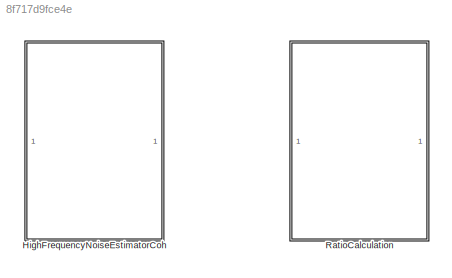
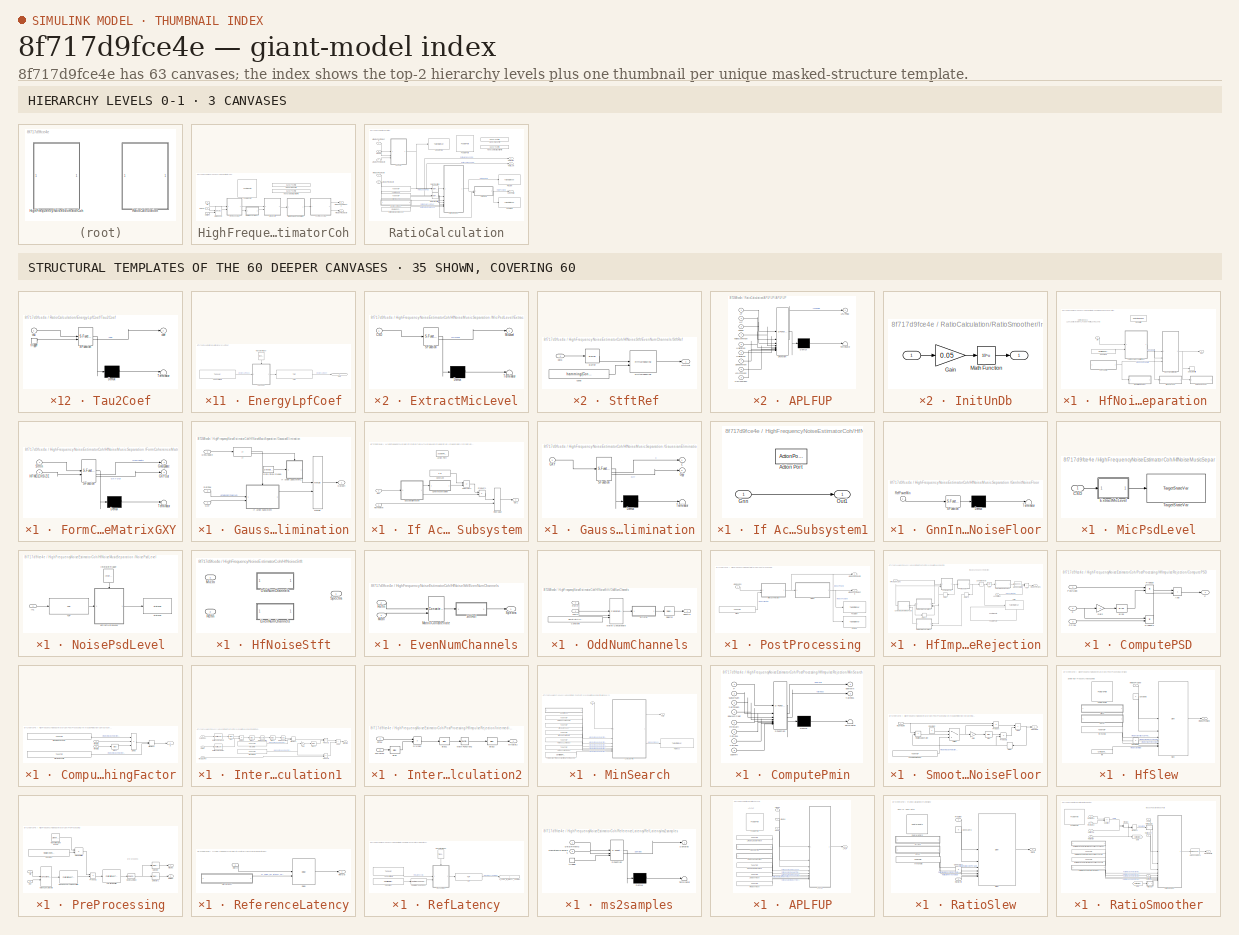
[diagram: thumbnail index - top-2 hierarchy levels (3 canvases) + 35 structural-template representatives of the remaining 60 canvases]
MODEL slx_8f717d9fce4e
KIND library
CONFIG AbsTol = auto
CONFIG EnableMultiTasking = off
CONFIG FixedStep = auto
CONFIG MaxStep = auto
CONFIG MinStep = auto
CONFIG RelTol = 1e-3
CONFIG SampleTimeConstraint = Unconstrained
CONFIG SolverName = VariableStepAuto
CONFIG StartTime = 0.0
CONFIG StopTime = 10.0
BLOCK [SubSystem] HighFrequencyNoiseEstimatorCoh
BLOCK [Reference] HighFrequencyNoiseEstimatorCoh/FeaturePath  REF=FeaturePath/FeaturePath
  SourceBlock = FeaturePath/FeaturePath
  SourceProductName = Bose Talaria
  SourceType = Talaria Feature Path
BLOCK [Reference] HighFrequencyNoiseEstimatorCoh/HandyDefaultConfigFile  REF=HandyTextFile/HandyTextFile
  SourceBlock = HandyTextFile/HandyTextFile
  SourceProductName = Bose Talaria
  SourceType = Talaria Handy Text File
BLOCK [Reference] HighFrequencyNoiseEstimatorCoh/HandyMaskFile  REF=HandyTextFile/HandyTextFile
  SourceBlock = HandyTextFile/HandyTextFile
  SourceProductName = Bose Talaria
  SourceType = Talaria Handy Text File
BLOCK [SubSystem] HighFrequencyNoiseEstimatorCoh/HfNoiseMusicSeparation 
BLOCK [Constant] HighFrequencyNoiseEstimatorCoh/HfNoiseMusicSeparation /Constant1
  OutDataTypeStr = single
  Value = Config.CoherenceWelchSize
BLOCK [DataStoreWrite] HighFrequencyNoiseEstimatorCoh/HfNoiseMusicSeparation /Data Store Write
  DataStoreName = Gnn
  IndexOptions = Index vector (dialog)
  Indices = 1
  OutputSizes = 1
BLOCK [SubSystem] HighFrequencyNoiseEstimatorCoh/HfNoiseMusicSeparation /FormCoherenceMatrixGXY
  ErrorFcn = Stateflow.Translate.translate
  PermitHierarchicalResolution = ExplicitOnly
  SFBlockType = MATLAB Function
  TreatAsAtomicUnit = on
BLOCK [Demux] HighFrequencyNoiseEstimatorCoh/HfNoiseMusicSeparation /FormCoherenceMatrixGXY/ Demux 
  Outputs = 1
BLOCK [S-Function] HighFrequencyNoiseEstimatorCoh/HfNoiseMusicSeparation /FormCoherenceMatrixGXY/ SFunction 
  EnableBusSupport = off
  FunctionName = sf_sfun
  PortCounts = [2 3]
  SFcnIsStateOwnerBlock = off
  SFunctionDeploymentMode = off
  Tag = Stateflow S-Function 3
BLOCK [Terminator] HighFrequencyNoiseEstimatorCoh/HfNoiseMusicSeparation /FormCoherenceMatrixGXY/ Terminator 
BLOCK [Outport] HighFrequencyNoiseEstimatorCoh/HfNoiseMusicSeparation /FormCoherenceMatrixGXY/GXYOut
  Port = 2
  VectorParamsAs1DForOutWhenUnconnected = off
BLOCK [Outport] HighFrequencyNoiseEstimatorCoh/HfNoiseMusicSeparation /FormCoherenceMatrixGXY/GnnUpdate
  VectorParamsAs1DForOutWhenUnconnected = off
BLOCK [Inport] HighFrequencyNoiseEstimatorCoh/HfNoiseMusicSeparation /FormCoherenceMatrixGXY/HFWELCHSIZE
  Port = 2
BLOCK [Inport] HighFrequencyNoiseEstimatorCoh/HfNoiseMusicSeparation /FormCoherenceMatrixGXY/StftIn
BLOCK [SubSystem] HighFrequencyNoiseEstimatorCoh/HfNoiseMusicSeparation /GaussianElimination
BLOCK [DataStoreRead] HighFrequencyNoiseEstimatorCoh/HfNoiseMusicSeparation /GaussianElimination/Data Store Read1
  DataStoreName = Gnn
  IndexOptions = Index vector (dialog)
  Indices = 1
  OutputSizes = 1
BLOCK [Inport] HighFrequencyNoiseEstimatorCoh/HfNoiseMusicSeparation /GaussianElimination/GXY
  Port = 2
BLOCK [Inport] HighFrequencyNoiseEstimatorCoh/HfNoiseMusicSeparation /GaussianElimination/GnnUpdate
BLOCK [If] HighFrequencyNoiseEstimatorCoh/HfNoiseMusicSeparation /GaussianElimination/If
  IfExpression = u1
BLOCK [SubSystem] HighFrequencyNoiseEstimatorCoh/HfNoiseMusicSeparation /GaussianElimination/If Action Subsystem
  TreatAsAtomicUnit = on
BLOCK [ActionPort] HighFrequencyNoiseEstimatorCoh/HfNoiseMusicSeparation /GaussianElimination/If Action Subsystem/Action Port
BLOCK [SubSystem] HighFrequencyNoiseEstimatorCoh/HfNoiseMusicSeparation /GaussianElimination/If Action Subsystem/CoherenceModifier
  ErrorFcn = Stateflow.Translate.translate
  PermitHierarchicalResolution = ExplicitOnly
  SFBlockType = MATLAB Function
  TreatAsAtomicUnit = on
BLOCK [Demux] HighFrequencyNoiseEstimatorCoh/HfNoiseMusicSeparation /GaussianElimination/If Action Subsystem/CoherenceModifier/ Demux 
  Outputs = 1
BLOCK [S-Function] HighFrequencyNoiseEstimatorCoh/HfNoiseMusicSeparation /GaussianElimination/If Action Subsystem/CoherenceModifier/ SFunction 
  EnableBusSupport = off
  FunctionName = sf_sfun
  PortCounts = [1 2]
  SFcnIsStateOwnerBlock = off
  SFunctionDeploymentMode = off
  Tag = Stateflow S-Function 19
BLOCK [Terminator] HighFrequencyNoiseEstimatorCoh/HfNoiseMusicSeparation /GaussianElimination/If Action Subsystem/CoherenceModifier/ Terminator 
BLOCK [Outport] HighFrequencyNoiseEstimatorCoh/HfNoiseMusicSeparation /GaussianElimination/If Action Subsystem/CoherenceModifier/u
  VectorParamsAs1DForOutWhenUnconnected = off
BLOCK [Inport] HighFrequencyNoiseEstimatorCoh/HfNoiseMusicSeparation /GaussianElimination/If Action Subsystem/CoherenceModifier/u 
BLOCK [Constant] HighFrequencyNoiseEstimatorCoh/HfNoiseMusicSeparation /GaussianElimination/If Action Subsystem/Constant
  OutDataTypeStr = single
  Value = 1.0
BLOCK [MinMax] HighFrequencyNoiseEstimatorCoh/HfNoiseMusicSeparation /GaussianElimination/If Action Subsystem/FloorValue
  Function = max
  Inputs = 2
BLOCK [Inport] HighFrequencyNoiseEstimatorCoh/HfNoiseMusicSeparation /GaussianElimination/If Action Subsystem/GXY
  Port = 2
BLOCK [SubSystem] HighFrequencyNoiseEstimatorCoh/HfNoiseMusicSeparation /GaussianElimination/If Action Subsystem/GaussianElimination
  ErrorFcn = Stateflow.Translate.translate
  PermitHierarchicalResolution = ExplicitOnly
  SFBlockType = MATLAB Function
  TreatAsAtomicUnit = on
BLOCK [Demux] HighFrequencyNoiseEstimatorCoh/HfNoiseMusicSeparation /GaussianElimination/If Action Subsystem/GaussianElimination/ Demux 
  Outputs = 1
BLOCK [S-Function] HighFrequencyNoiseEstimatorCoh/HfNoiseMusicSeparation /GaussianElimination/If Action Subsystem/GaussianElimination/ SFunction 
  EnableBusSupport = off
  FunctionName = sf_sfun
  PortCounts = [1 3]
  SFcnIsStateOwnerBlock = off
  SFunctionDeploymentMode = off
  Tag = Stateflow S-Function 23
BLOCK [Terminator] HighFrequencyNoiseEstimatorCoh/HfNoiseMusicSeparation /GaussianElimination/If Action Subsystem/GaussianElimination/ Terminator 
BLOCK [Inport] HighFrequencyNoiseEstimatorCoh/HfNoiseMusicSeparation /GaussianElimination/If Action Subsystem/GaussianElimination/GXY
BLOCK [Outport] HighFrequencyNoiseEstimatorCoh/HfNoiseMusicSeparation /GaussianElimination/If Action Subsystem/GaussianElimination/Gyy
  Port = 2
  VectorParamsAs1DForOutWhenUnconnected = off
BLOCK [Outport] HighFrequencyNoiseEstimatorCoh/HfNoiseMusicSeparation /GaussianElimination/If Action Subsystem/GaussianElimination/c
  VectorParamsAs1DForOutWhenUnconnected = off
BLOCK [Outport] HighFrequencyNoiseEstimatorCoh/HfNoiseMusicSeparation /GaussianElimination/If Action Subsystem/Out1
  VectorParamsAs1DForOutWhenUnconnected = off
BLOCK [Product] HighFrequencyNoiseEstimatorCoh/HfNoiseMusicSeparation /GaussianElimination/If Action Subsystem/Product1
  RndMeth = Zero
BLOCK [Inport] HighFrequencyNoiseEstimatorCoh/HfNoiseMusicSeparation /GaussianElimination/If Action Subsystem/RefPowMin
BLOCK [Sum] HighFrequencyNoiseEstimatorCoh/HfNoiseMusicSeparation /GaussianElimination/If Action Subsystem/Subtract1
  IconShape = rectangular
  Inputs = +-
BLOCK [SubSystem] HighFrequencyNoiseEstimatorCoh/HfNoiseMusicSeparation /GaussianElimination/If Action Subsystem1
  TreatAsAtomicUnit = on
BLOCK [ActionPort] HighFrequencyNoiseEstimatorCoh/HfNoiseMusicSeparation /GaussianElimination/If Action Subsystem1/Action Port
BLOCK [Inport] HighFrequencyNoiseEstimatorCoh/HfNoiseMusicSeparation /GaussianElimination/If Action Subsystem1/Gnn
BLOCK [Outport] HighFrequencyNoiseEstimatorCoh/HfNoiseMusicSeparation /GaussianElimination/If Action Subsystem1/Out1
  VectorParamsAs1DForOutWhenUnconnected = off
BLOCK [Merge] HighFrequencyNoiseEstimatorCoh/HfNoiseMusicSeparation /GaussianElimination/Merge
BLOCK [Outport] HighFrequencyNoiseEstimatorCoh/HfNoiseMusicSeparation /GaussianElimination/Outport
  VectorParamsAs1DForOutWhenUnconnected = off
BLOCK [Inport] HighFrequencyNoiseEstimatorCoh/HfNoiseMusicSeparation /GaussianElimination/RefPow
  Port = 3
BLOCK [Outport] HighFrequencyNoiseEstimatorCoh/HfNoiseMusicSeparation /Gnn
  VectorParamsAs1DForOutWhenUnconnected = off
BLOCK [SubSystem] HighFrequencyNoiseEstimatorCoh/HfNoiseMusicSeparation /GnnInitNoiseFloor
  ErrorFcn = Stateflow.Translate.translate
  PermitHierarchicalResolution = ExplicitOnly
  SFBlockType = MATLAB Function
  TreatAsAtomicUnit = on
BLOCK [Demux] HighFrequencyNoiseEstimatorCoh/HfNoiseMusicSeparation /GnnInitNoiseFloor/ Demux 
  Outputs = 1
BLOCK [S-Function] HighFrequencyNoiseEstimatorCoh/HfNoiseMusicSeparation /GnnInitNoiseFloor/ SFunction 
  EnableBusSupport = off
  FunctionName = sf_sfun
  PortCounts = [1 1]
  SFcnIsStateOwnerBlock = off
  SFunctionDeploymentMode = off
  Tag = Stateflow S-Function 4
BLOCK [Terminator] HighFrequencyNoiseEstimatorCoh/HfNoiseMusicSeparation /GnnInitNoiseFloor/ Terminator 
BLOCK [Inport] HighFrequencyNoiseEstimatorCoh/HfNoiseMusicSeparation /GnnInitNoiseFloor/RefPowerMin
BLOCK [DataStoreMemory] HighFrequencyNoiseEstimatorCoh/HfNoiseMusicSeparation /GnnMatrix
  DataStoreName = Gnn
  InitialValue = single(zeros(Config.CoherenceFftSize/4+1,1))
  OutDataTypeStr = single
  ShowAdditionalParam = off
  SignalType = real
BLOCK [SubSystem] HighFrequencyNoiseEstimatorCoh/HfNoiseMusicSeparation /MicPsdLevel
BLOCK [Inport] HighFrequencyNoiseEstimatorCoh/HfNoiseMusicSeparation /MicPsdLevel/CSD
BLOCK [SubSystem] HighFrequencyNoiseEstimatorCoh/HfNoiseMusicSeparation /MicPsdLevel/ExtractMicLevel
  ErrorFcn = Stateflow.Translate.translate
  PermitHierarchicalResolution = ExplicitOnly
  SFBlockType = MATLAB Function
  TreatAsAtomicUnit = on
BLOCK [Demux] HighFrequencyNoiseEstimatorCoh/HfNoiseMusicSeparation /MicPsdLevel/ExtractMicLevel/ Demux 
  Outputs = 1
BLOCK [S-Function] HighFrequencyNoiseEstimatorCoh/HfNoiseMusicSeparation /MicPsdLevel/ExtractMicLevel/ SFunction 
  EnableBusSupport = off
  FunctionName = sf_sfun
  PortCounts = [1 2]
  SFcnIsStateOwnerBlock = off
  SFunctionDeploymentMode = off
  Tag = Stateflow S-Function 21
BLOCK [Terminator] HighFrequencyNoiseEstimatorCoh/HfNoiseMusicSeparation /MicPsdLevel/ExtractMicLevel/ Terminator 
BLOCK [Inport] HighFrequencyNoiseEstimatorCoh/HfNoiseMusicSeparation /MicPsdLevel/ExtractMicLevel/CSD
BLOCK [Outport] HighFrequencyNoiseEstimatorCoh/HfNoiseMusicSeparation /MicPsdLevel/ExtractMicLevel/MicLevel
BLOCK [Reference] HighFrequencyNoiseEstimatorCoh/HfNoiseMusicSeparation /MicPsdLevel/TargetStateVar  REF=StateVar/TargetStateVar
  SourceBlock = StateVar/TargetStateVar
  SourceProductName = Bose Talaria
  SourceType = Talaria Target State Variable
BLOCK [SubSystem] HighFrequencyNoiseEstimatorCoh/HfNoiseMusicSeparation /NoisePsdLevel
BLOCK [SubSystem] HighFrequencyNoiseEstimatorCoh/HfNoiseMusicSeparation /NoisePsdLevel/ExtractNoiseLevel
  ErrorFcn = Stateflow.Translate.translate
  PermitHierarchicalResolution = ExplicitOnly
  SFBlockType = MATLAB Function
  TreatAsAtomicUnit = on
BLOCK [Demux] HighFrequencyNoiseEstimatorCoh/HfNoiseMusicSeparation /NoisePsdLevel/ExtractNoiseLevel/ Demux 
  Outputs = 1
BLOCK [S-Function] HighFrequencyNoiseEstimatorCoh/HfNoiseMusicSeparation /NoisePsdLevel/ExtractNoiseLevel/ SFunction 
  EnableBusSupport = off
  FunctionName = sf_sfun
  PortCounts = [2 2]
  SFcnIsStateOwnerBlock = off
  SFunctionDeploymentMode = off
  Tag = Stateflow S-Function 12
BLOCK [Terminator] HighFrequencyNoiseEstimatorCoh/HfNoiseMusicSeparation /NoisePsdLevel/ExtractNoiseLevel/ Terminator 
BLOCK [Outport] HighFrequencyNoiseEstimatorCoh/HfNoiseMusicSeparation /NoisePsdLevel/ExtractNoiseLevel/NoiseLevel
BLOCK [Inport] HighFrequencyNoiseEstimatorCoh/HfNoiseMusicSeparation /NoisePsdLevel/ExtractNoiseLevel/PSD
BLOCK [TriggerPort] HighFrequencyNoiseEstimatorCoh/HfNoiseMusicSeparation /NoisePsdLevel/ExtractNoiseLevel/trigger
  ShowOutputPort = on
  StatesWhenEnabling = held
  TriggerType = function-call
  VariantControl = Variant
BLOCK [Inport] HighFrequencyNoiseEstimatorCoh/HfNoiseMusicSeparation /NoisePsdLevel/In1
BLOCK [Reference] HighFrequencyNoiseEstimatorCoh/HfNoiseMusicSeparation /NoisePsdLevel/InterpretTrigger  REF=StateVar/InterpretTrigger
  NameLocation = right
  SourceBlock = StateVar/InterpretTrigger
  SourceProductName = Bose Talaria
  SourceType = Talaria Interpret Trigger
BLOCK [Reference] HighFrequencyNoiseEstimatorCoh/HfNoiseMusicSeparation /NoisePsdLevel/StateVar  REF=StateVar/StateVar
  SourceBlock = StateVar/StateVar
  SourceProductName = Bose Talaria
  SourceType = Talaria State Variable
BLOCK [Reference] HighFrequencyNoiseEstimatorCoh/HfNoiseMusicSeparation /NoisePsdLevel/TSP  REF=TSP/TSP
  SourceBlock = TSP/TSP
  SourceProductName = Bose Talaria
  SourceType = Talaria Target State Probe
BLOCK [SubSystem] HighFrequencyNoiseEstimatorCoh/HfNoiseMusicSeparation /RefPowerMin
BLOCK [Outport] HighFrequencyNoiseEstimatorCoh/HfNoiseMusicSeparation /RefPowerMin/Out1
  IconDisplay = Signal name
  VectorParamsAs1DForOutWhenUnconnected = off
BLOCK [Reference] HighFrequencyNoiseEstimatorCoh/HfNoiseMusicSeparation /RefPowerMin/RefPowerMin  REF=TOP/TOP
  SourceBlock = TOP/TOP
  SourceProductName = Bose Talaria
  SourceType = Talaria Target Overlay Parameter
BLOCK [Reference] HighFrequencyNoiseEstimatorCoh/HfNoiseMusicSeparation /RefPowerMin/TranslateTrigger  REF=TuneVar/TranslateTrigger
  NameLocation = left
  SourceBlock = TuneVar/TranslateTrigger
  SourceProductName = Bose Talaria
  SourceType = Talaria Translate Trigger
BLOCK [Reference] HighFrequencyNoiseEstimatorCoh/HfNoiseMusicSeparation /RefPowerMin/Tune Variable  REF=TuneVar/TuneVar
  SourceBlock = TuneVar/TuneVar
  SourceProductName = Bose Talaria
  SourceType = Talaria Tune Variable
BLOCK [SubSystem] HighFrequencyNoiseEstimatorCoh/HfNoiseMusicSeparation /RefPowerMin/undB
  ErrorFcn = Stateflow.Translate.translate
  PermitHierarchicalResolution = ExplicitOnly
  SFBlockType = MATLAB Function
  TreatAsAtomicUnit = on
BLOCK [Demux] HighFrequencyNoiseEstimatorCoh/HfNoiseMusicSeparation /RefPowerMin/undB/ Demux 
  Outputs = 1
BLOCK [S-Function] HighFrequencyNoiseEstimatorCoh/HfNoiseMusicSeparation /RefPowerMin/undB/ SFunction 
  EnableBusSupport = off
  FunctionName = sf_sfun
  PortCounts = [2 2]
  SFcnIsStateOwnerBlock = off
  SFunctionDeploymentMode = off
  Tag = Stateflow S-Function 20
BLOCK [Terminator] HighFrequencyNoiseEstimatorCoh/HfNoiseMusicSeparation /RefPowerMin/undB/ Terminator 
BLOCK [Outport] HighFrequencyNoiseEstimatorCoh/HfNoiseMusicSeparation /RefPowerMin/undB/TOP
  VectorParamsAs1DForOutWhenUnconnected = off
BLOCK [Inport] HighFrequencyNoiseEstimatorCoh/HfNoiseMusicSeparation /RefPowerMin/undB/Tune
BLOCK [TriggerPort] HighFrequencyNoiseEstimatorCoh/HfNoiseMusicSeparation /RefPowerMin/undB/trigger
  ShowOutputPort = on
  StatesWhenEnabling = held
  TriggerType = function-call
  VariantControl = Variant
BLOCK [Inport] HighFrequencyNoiseEstimatorCoh/HfNoiseMusicSeparation /Stft
BLOCK [Outport] HighFrequencyNoiseEstimatorCoh/HfNoisePostSmooth
  Port = 2
  VectorParamsAs1DForOutWhenUnconnected = off
BLOCK [Outport] HighFrequencyNoiseEstimatorCoh/HfNoisePreSmooth
  VectorParamsAs1DForOutWhenUnconnected = off
BLOCK [SubSystem] HighFrequencyNoiseEstimatorCoh/HfNoiseStft
  LabelModeActiveChoice = EvenNumChannels
  Variant = on
  VariantControlMode = label
BLOCK [SubSystem] HighFrequencyNoiseEstimatorCoh/HfNoiseStft/EvenNumChannels
  VariantControl = EvenNumChannels
BLOCK [Concatenate] HighFrequencyNoiseEstimatorCoh/HfNoiseStft/EvenNumChannels/Matrix Concatenate
  ConcatenateDimension = 2
  Mode = Multidimensional array
BLOCK [Inport] HighFrequencyNoiseEstimatorCoh/HfNoiseStft/EvenNumChannels/MicIn
BLOCK [Inport] HighFrequencyNoiseEstimatorCoh/HfNoiseStft/EvenNumChannels/RefIn
  Port = 2
BLOCK [Outport] HighFrequencyNoiseEstimatorCoh/HfNoiseStft/EvenNumChannels/Spectra
BLOCK [SubSystem] HighFrequencyNoiseEstimatorCoh/HfNoiseStft/EvenNumChannels/StftRef 
BLOCK [Buffer] HighFrequencyNoiseEstimatorCoh/HfNoiseStft/EvenNumChannels/StftRef /Buffer
  N = Config.CoherenceFftSize
  V = Config.CoherenceOverlap
BLOCK [Reference] HighFrequencyNoiseEstimatorCoh/HfNoiseStft/EvenNumChannels/StftRef /RfftWindowing  REF=RfftLib/RfftWindowing
  Description = This block computes the Fourier Transform using an optimized FFT for real 2-channel input.
  SourceBlock = RfftLib/RfftWindowing
  SourceProductName = Bose Blocklib
  SourceType = Blocklib RfftWindowing
BLOCK [Outport] HighFrequencyNoiseEstimatorCoh/HfNoiseStft/EvenNumChannels/StftRef /StftOut
  VectorParamsAs1DForOutWhenUnconnected = off
BLOCK [Constant] HighFrequencyNoiseEstimatorCoh/HfNoiseStft/EvenNumChannels/StftRef /const
  OutDataTypeStr = single
  Value = hamming(Config.CoherenceFftSize);
BLOCK [Inport] HighFrequencyNoiseEstimatorCoh/HfNoiseStft/EvenNumChannels/StftRef /data
BLOCK [Inport] HighFrequencyNoiseEstimatorCoh/HfNoiseStft/MicIn
BLOCK [SubSystem] HighFrequencyNoiseEstimatorCoh/HfNoiseStft/OddNumChannels
  VariantControl = OddNumChannels
BLOCK [Constant] HighFrequencyNoiseEstimatorCoh/HfNoiseStft/OddNumChannels/Constant
  OutDataTypeStr = single
  Value = EmptyStftInput
  VectorParams1D = off
BLOCK [Concatenate] HighFrequencyNoiseEstimatorCoh/HfNoiseStft/OddNumChannels/Matrix Concatenate
  ConcatenateDimension = 2
  Mode = Multidimensional array
  NumInputs = 3
BLOCK [Inport] HighFrequencyNoiseEstimatorCoh/HfNoiseStft/OddNumChannels/MicIn
BLOCK [Inport] HighFrequencyNoiseEstimatorCoh/HfNoiseStft/OddNumChannels/RefIn
  Port = 2
BLOCK [Selector] HighFrequencyNoiseEstimatorCoh/HfNoiseStft/OddNumChannels/Selector
  IndexOptions = Select all,Index vector (dialog)
  Indices = [1 3],[1:(NumHFRefChannels+1)]
  InputPortWidth = 3
  NumberOfDimensions = 2
  OutputSizes = 1,1
BLOCK [Outport] HighFrequencyNoiseEstimatorCoh/HfNoiseStft/OddNumChannels/Spectra
BLOCK [SubSystem] HighFrequencyNoiseEstimatorCoh/HfNoiseStft/OddNumChannels/StftRef
BLOCK [Buffer] HighFrequencyNoiseEstimatorCoh/HfNoiseStft/OddNumChannels/StftRef/Buffer
  N = Config.CoherenceFftSize
  V = Config.CoherenceOverlap
BLOCK [Reference] HighFrequencyNoiseEstimatorCoh/HfNoiseStft/OddNumChannels/StftRef/RfftWindowing  REF=RfftLib/RfftWindowing
  Description = This block computes the Fourier Transform using an optimized FFT for real 2-channel input.
  SourceBlock = RfftLib/RfftWindowing
  SourceProductName = Bose Blocklib
  SourceType = Blocklib RfftWindowing
BLOCK [Outport] HighFrequencyNoiseEstimatorCoh/HfNoiseStft/OddNumChannels/StftRef/StftOut
  VectorParamsAs1DForOutWhenUnconnected = off
BLOCK [Constant] HighFrequencyNoiseEstimatorCoh/HfNoiseStft/OddNumChannels/StftRef/const
  OutDataTypeStr = single
  Value = hamming(Config.CoherenceFftSize);
BLOCK [Inport] HighFrequencyNoiseEstimatorCoh/HfNoiseStft/OddNumChannels/StftRef/data
BLOCK [Inport] HighFrequencyNoiseEstimatorCoh/HfNoiseStft/RefIn
  Port = 2
BLOCK [Outport] HighFrequencyNoiseEstimatorCoh/HfNoiseStft/Spectra
BLOCK [Inport] HighFrequencyNoiseEstimatorCoh/Mic
BLOCK [SubSystem] HighFrequencyNoiseEstimatorCoh/PostProcessing
BLOCK [SubSystem] HighFrequencyNoiseEstimatorCoh/PostProcessing/HfImpulseRejection
BLOCK [Sum] HighFrequencyNoiseEstimatorCoh/PostProcessing/HfImpulseRejection/Add
  IconShape = rectangular
BLOCK [SubSystem] HighFrequencyNoiseEstimatorCoh/PostProcessing/HfImpulseRejection/ComputePSD
BLOCK [Sum] HighFrequencyNoiseEstimatorCoh/PostProcessing/HfImpulseRejection/ComputePSD/Add
  IconShape = rectangular
BLOCK [Bias] HighFrequencyNoiseEstimatorCoh/PostProcessing/HfImpulseRejection/ComputePSD/Bias
  Bias = 1
  SaturateOnIntegerOverflow = off
BLOCK [Gain] HighFrequencyNoiseEstimatorCoh/PostProcessing/HfImpulseRejection/ComputePSD/Gain
  Gain = -1
BLOCK [Outport] HighFrequencyNoiseEstimatorCoh/PostProcessing/HfImpulseRejection/ComputePSD/P
  VectorParamsAs1DForOutWhenUnconnected = off
BLOCK [Inport] HighFrequencyNoiseEstimatorCoh/PostProcessing/HfImpulseRejection/ComputePSD/PPrev
  Port = 3
BLOCK [Inport] HighFrequencyNoiseEstimatorCoh/PostProcessing/HfImpulseRejection/ComputePSD/PowSpec
BLOCK [Product] HighFrequencyNoiseEstimatorCoh/PostProcessing/HfImpulseRejection/ComputePSD/Product
  RndMeth = Zero
BLOCK [Product] HighFrequencyNoiseEstimatorCoh/PostProcessing/HfImpulseRejection/ComputePSD/Product1
  NameLocation = top
  RndMeth = Zero
BLOCK [Inport] HighFrequencyNoiseEstimatorCoh/PostProcessing/HfImpulseRejection/ComputePSD/a
  Port = 2
BLOCK [SubSystem] HighFrequencyNoiseEstimatorCoh/PostProcessing/HfImpulseRejection/ComputeSmoothingFactor
BLOCK [Bias] HighFrequencyNoiseEstimatorCoh/PostProcessing/HfImpulseRejection/ComputeSmoothingFactor/Bias2
  Bias = eps
  SaturateOnIntegerOverflow = off
BLOCK [Product] HighFrequencyNoiseEstimatorCoh/PostProcessing/HfImpulseRejection/ComputeSmoothingFactor/Divide
  Inputs = **/
BLOCK [MinMax] HighFrequencyNoiseEstimatorCoh/PostProcessing/HfImpulseRejection/ComputeSmoothingFactor/MinMax2
  Function = max
  Inputs = 2
  NameLocation = top
BLOCK [Inport] HighFrequencyNoiseEstimatorCoh/PostProcessing/HfImpulseRejection/ComputeSmoothingFactor/MinStat1
BLOCK [Inport] HighFrequencyNoiseEstimatorCoh/PostProcessing/HfImpulseRejection/ComputeSmoothingFactor/MinStat2
  Port = 2
BLOCK [Reference] HighFrequencyNoiseEstimatorCoh/PostProcessing/HfImpulseRejection/ComputeSmoothingFactor/MinstatAlphaFactor  REF=TuneVar/TuneTOP
  SourceBlock = TuneVar/TuneTOP
  SourceProductName = Bose Talaria
  SourceType = Talaria Trivial Tune TOP
BLOCK [Reference] HighFrequencyNoiseEstimatorCoh/PostProcessing/HfImpulseRejection/ComputeSmoothingFactor/MinstatAlphaMin  REF=TuneVar/TuneTOP
  SourceBlock = TuneVar/TuneTOP
  SourceProductName = Bose Talaria
  SourceType = Talaria Trivial Tune TOP
BLOCK [Outport] HighFrequencyNoiseEstimatorCoh/PostProcessing/HfImpulseRejection/ComputeSmoothingFactor/a
  VectorParamsAs1DForOutWhenUnconnected = off
BLOCK [Reference] HighFrequencyNoiseEstimatorCoh/PostProcessing/HfImpulseRejection/DbConversion  REF=dspmathops/dB Conversion
  SourceBlock = dspmathops/dB Conversion
  SourceType = dB Conversion
BLOCK [Delay] HighFrequencyNoiseEstimatorCoh/PostProcessing/HfImpulseRejection/Delay
  DelayLength = 1
  InitialCondition = 0
  InputPortMap = u0
  UserDataPersistent = on
BLOCK [Delay] HighFrequencyNoiseEstimatorCoh/PostProcessing/HfImpulseRejection/Delay1
  DelayLength = 1
  InitialCondition = 1
  InputPortMap = u0
  NameLocation = top
  UserDataPersistent = on
BLOCK [Delay] HighFrequencyNoiseEstimatorCoh/PostProcessing/HfImpulseRejection/Delay2
  DelayLength = 1
  InitialCondition = 0
  InputPortMap = u0
  UserDataPersistent = on
BLOCK [Reference] HighFrequencyNoiseEstimatorCoh/PostProcessing/HfImpulseRejection/FeaturePath  REF=FeaturePath/FeaturePath
  SourceBlock = FeaturePath/FeaturePath
  SourceProductName = Bose Talaria
  SourceType = Talaria Feature Path
BLOCK [Outport] HighFrequencyNoiseEstimatorCoh/PostProcessing/HfImpulseRejection/HfNoisePreSlew
  VectorParamsAs1DForOutWhenUnconnected = off
BLOCK [Inport] HighFrequencyNoiseEstimatorCoh/PostProcessing/HfImpulseRejection/HfPowSpecDec
BLOCK [SubSystem] HighFrequencyNoiseEstimatorCoh/PostProcessing/HfImpulseRejection/IntermediateCalculation1 
BLOCK [Sum] HighFrequencyNoiseEstimatorCoh/PostProcessing/HfImpulseRejection/IntermediateCalculation1 /Add6
  IconShape = rectangular
  NameLocation = top
BLOCK [Bias] HighFrequencyNoiseEstimatorCoh/PostProcessing/HfImpulseRejection/IntermediateCalculation1 /Bias
  Bias = eps
  SaturateOnIntegerOverflow = off
BLOCK [Bias] HighFrequencyNoiseEstimatorCoh/PostProcessing/HfImpulseRejection/IntermediateCalculation1 /Bias1
  Bias = -1
  SaturateOnIntegerOverflow = off
BLOCK [Bias] HighFrequencyNoiseEstimatorCoh/PostProcessing/HfImpulseRejection/IntermediateCalculation1 /Bias2
  Bias = +1
  SaturateOnIntegerOverflow = off
BLOCK [Bias] HighFrequencyNoiseEstimatorCoh/PostProcessing/HfImpulseRejection/IntermediateCalculation1 /Bias3
  Bias = +1
  SaturateOnIntegerOverflow = off
BLOCK [Product] HighFrequencyNoiseEstimatorCoh/PostProcessing/HfImpulseRejection/IntermediateCalculation1 /Divide1
  Inputs = /*
BLOCK [Gain] HighFrequencyNoiseEstimatorCoh/PostProcessing/HfImpulseRejection/IntermediateCalculation1 /Gain
  Gain = -1
BLOCK [Math] HighFrequencyNoiseEstimatorCoh/PostProcessing/HfImpulseRejection/IntermediateCalculation1 /Math Function
  Operator = magnitude^2
  SignedPower = on
BLOCK [Math] HighFrequencyNoiseEstimatorCoh/PostProcessing/HfImpulseRejection/IntermediateCalculation1 /Math Function1
  NameLocation = top
  Operator = reciprocal
  SignedPower = on
BLOCK [Reference] HighFrequencyNoiseEstimatorCoh/PostProcessing/HfImpulseRejection/IntermediateCalculation1 /MatrixSumPowCurr  REF=dspobslib/Matrix
Sum
  SourceBlock = dspobslib/Matrix\nSum
  SourceType = Matrix Sum
BLOCK [Reference] HighFrequencyNoiseEstimatorCoh/PostProcessing/HfImpulseRejection/IntermediateCalculation1 /MatrixSumPowPrev  REF=dspobslib/Matrix
Sum
  SourceBlock = dspobslib/Matrix\nSum
  SourceType = Matrix Sum
BLOCK [MinMax] HighFrequencyNoiseEstimatorCoh/PostProcessing/HfImpulseRejection/IntermediateCalculation1 /MinMax1
  Function = max
  Inputs = 2
BLOCK [Outport] HighFrequencyNoiseEstimatorCoh/PostProcessing/HfImpulseRejection/IntermediateCalculation1 /MinStat1
  VectorParamsAs1DForOutWhenUnconnected = off
BLOCK [Inport] HighFrequencyNoiseEstimatorCoh/PostProcessing/HfImpulseRejection/IntermediateCalculation1 /MinStat1Prev
  Port = 3
BLOCK [Reference] HighFrequencyNoiseEstimatorCoh/PostProcessing/HfImpulseRejection/IntermediateCalculation1 /MinstatBeta  REF=TuneVar/TuneTOP
  SourceBlock = TuneVar/TuneTOP
  SourceProductName = Bose Talaria
  SourceType = Talaria Trivial Tune TOP
BLOCK [Reference] HighFrequencyNoiseEstimatorCoh/PostProcessing/HfImpulseRejection/IntermediateCalculation1 /MinstatMin  REF=TuneVar/TuneTOP
  SourceBlock = TuneVar/TuneTOP
  SourceProductName = Bose Talaria
  SourceType = Talaria Trivial Tune TOP
BLOCK [Inport] HighFrequencyNoiseEstimatorCoh/PostProcessing/HfImpulseRejection/IntermediateCalculation1 /PPrev
  Port = 2
BLOCK [Inport] HighFrequencyNoiseEstimatorCoh/PostProcessing/HfImpulseRejection/IntermediateCalculation1 /PowSpec
BLOCK [Product] HighFrequencyNoiseEstimatorCoh/PostProcessing/HfImpulseRejection/IntermediateCalculation1 /Product2
  RndMeth = Zero
BLOCK [Product] HighFrequencyNoiseEstimatorCoh/PostProcessing/HfImpulseRejection/IntermediateCalculation1 /Product3
  RndMeth = Zero
BLOCK [SubSystem] HighFrequencyNoiseEstimatorCoh/PostProcessing/HfImpulseRejection/IntermediateCalculation2
BLOCK [Bias] HighFrequencyNoiseEstimatorCoh/PostProcessing/HfImpulseRejection/IntermediateCalculation2/Bias
  Bias = eps
  SaturateOnIntegerOverflow = off
BLOCK [Bias] HighFrequencyNoiseEstimatorCoh/PostProcessing/HfImpulseRejection/IntermediateCalculation2/Bias1
  Bias = -1
  SaturateOnIntegerOverflow = off
BLOCK [Bias] HighFrequencyNoiseEstimatorCoh/PostProcessing/HfImpulseRejection/IntermediateCalculation2/Bias2
  Bias = +1
  SaturateOnIntegerOverflow = off
BLOCK [Product] HighFrequencyNoiseEstimatorCoh/PostProcessing/HfImpulseRejection/IntermediateCalculation2/Divide2
  Inputs = */
BLOCK [Math] HighFrequencyNoiseEstimatorCoh/PostProcessing/HfImpulseRejection/IntermediateCalculation2/Math Function2
  Operator = magnitude^2
  SignedPower = on
BLOCK [Outport] HighFrequencyNoiseEstimatorCoh/PostProcessing/HfImpulseRejection/IntermediateCalculation2/MinStat2
  VectorParamsAs1DForOutWhenUnconnected = off
BLOCK [Inport] HighFrequencyNoiseEstimatorCoh/PostProcessing/HfImpulseRejection/IntermediateCalculation2/PMinPrev
  Port = 2
BLOCK [Inport] HighFrequencyNoiseEstimatorCoh/PostProcessing/HfImpulseRejection/IntermediateCalculation2/PPrev
BLOCK [Inport] HighFrequencyNoiseEstimatorCoh/PostProcessing/HfImpulseRejection/LevelOffset
  Port = 2
BLOCK [SubSystem] HighFrequencyNoiseEstimatorCoh/PostProcessing/HfImpulseRejection/MinSearch
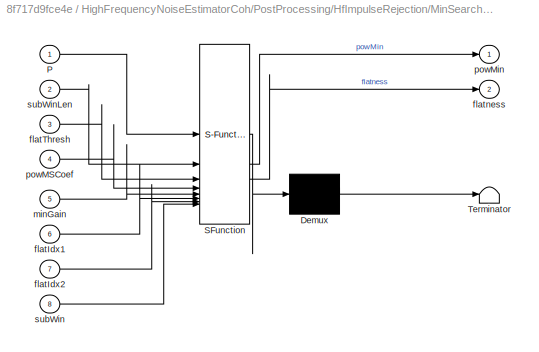
BLOCK [SubSystem] HighFrequencyNoiseEstimatorCoh/PostProcessing/HfImpulseRejection/MinSearch/ComputePmin
  ErrorFcn = Stateflow.Translate.translate
  PermitHierarchicalResolution = ExplicitOnly
  SFBlockType = MATLAB Function
  TreatAsAtomicUnit = on
BLOCK [Demux] HighFrequencyNoiseEstimatorCoh/PostProcessing/HfImpulseRejection/MinSearch/ComputePmin/ Demux 
  Outputs = 1
BLOCK [S-Function] HighFrequencyNoiseEstimatorCoh/PostProcessing/HfImpulseRejection/MinSearch/ComputePmin/ SFunction 
  EnableBusSupport = off
  FunctionName = sf_sfun
  PortCounts = [8 3]
  SFcnIsStateOwnerBlock = off
  SFunctionDeploymentMode = off
  Tag = Stateflow S-Function 5
BLOCK [Terminator] HighFrequencyNoiseEstimatorCoh/PostProcessing/HfImpulseRejection/MinSearch/ComputePmin/ Terminator 
BLOCK [Inport] HighFrequencyNoiseEstimatorCoh/PostProcessing/HfImpulseRejection/MinSearch/ComputePmin/P
BLOCK [Inport] HighFrequencyNoiseEstimatorCoh/PostProcessing/HfImpulseRejection/MinSearch/ComputePmin/flatIdx1
  Port = 6
BLOCK [Inport] HighFrequencyNoiseEstimatorCoh/PostProcessing/HfImpulseRejection/MinSearch/ComputePmin/flatIdx2
  Port = 7
BLOCK [Inport] HighFrequencyNoiseEstimatorCoh/PostProcessing/HfImpulseRejection/MinSearch/ComputePmin/flatThresh
  Port = 3
BLOCK [Outport] HighFrequencyNoiseEstimatorCoh/PostProcessing/HfImpulseRejection/MinSearch/ComputePmin/flatness
  Port = 2
  VectorParamsAs1DForOutWhenUnconnected = off
BLOCK [Inport] HighFrequencyNoiseEstimatorCoh/PostProcessing/HfImpulseRejection/MinSearch/ComputePmin/minGain
  Port = 5
BLOCK [Inport] HighFrequencyNoiseEstimatorCoh/PostProcessing/HfImpulseRejection/MinSearch/ComputePmin/powMSCoef
  Port = 4
BLOCK [Outport] HighFrequencyNoiseEstimatorCoh/PostProcessing/HfImpulseRejection/MinSearch/ComputePmin/powMin
  VectorParamsAs1DForOutWhenUnconnected = off
BLOCK [Inport] HighFrequencyNoiseEstimatorCoh/PostProcessing/HfImpulseRejection/MinSearch/ComputePmin/subWin
  Port = 8
BLOCK [Inport] HighFrequencyNoiseEstimatorCoh/PostProcessing/HfImpulseRejection/MinSearch/ComputePmin/subWinLen
  Port = 2
BLOCK [Reference] HighFrequencyNoiseEstimatorCoh/PostProcessing/HfImpulseRejection/MinSearch/Flatness  REF=StateVar/TargetStateVar
  SourceBlock = StateVar/TargetStateVar
  SourceProductName = Bose Talaria
  SourceType = Talaria Target State Variable
BLOCK [Reference] HighFrequencyNoiseEstimatorCoh/PostProcessing/HfImpulseRejection/MinSearch/FlatnessHighIndex  REF=TuneVar/TuneTOP
  SourceBlock = TuneVar/TuneTOP
  SourceProductName = Bose Talaria
  SourceType = Talaria Trivial Tune TOP
BLOCK [Reference] HighFrequencyNoiseEstimatorCoh/PostProcessing/HfImpulseRejection/MinSearch/FlatnessLowIndex  REF=TuneVar/TuneTOP
  SourceBlock = TuneVar/TuneTOP
  SourceProductName = Bose Talaria
  SourceType = Talaria Trivial Tune TOP
BLOCK [Reference] HighFrequencyNoiseEstimatorCoh/PostProcessing/HfImpulseRejection/MinSearch/FlatnessThreshold  REF=TuneVar/TuneTOP
  SourceBlock = TuneVar/TuneTOP
  SourceProductName = Bose Talaria
  SourceType = Talaria Trivial Tune TOP
BLOCK [Reference] HighFrequencyNoiseEstimatorCoh/PostProcessing/HfImpulseRejection/MinSearch/MinSearchCoef  REF=TuneVar/TuneTOP
  SourceBlock = TuneVar/TuneTOP
  SourceProductName = Bose Talaria
  SourceType = Talaria Trivial Tune TOP
BLOCK [Reference] HighFrequencyNoiseEstimatorCoh/PostProcessing/HfImpulseRejection/MinSearch/MinSearchMinGain  REF=TuneVar/TuneTOP
  SourceBlock = TuneVar/TuneTOP
  SourceProductName = Bose Talaria
  SourceType = Talaria Trivial Tune TOP
BLOCK [Inport] HighFrequencyNoiseEstimatorCoh/PostProcessing/HfImpulseRejection/MinSearch/P
BLOCK [Outport] HighFrequencyNoiseEstimatorCoh/PostProcessing/HfImpulseRejection/MinSearch/PMin
  VectorParamsAs1DForOutWhenUnconnected = off
BLOCK [SubSystem] HighFrequencyNoiseEstimatorCoh/PostProcessing/HfImpulseRejection/MinSearch/SubWinLen
BLOCK [Outport] HighFrequencyNoiseEstimatorCoh/PostProcessing/HfImpulseRejection/MinSearch/SubWinLen/Out1
  IconDisplay = Signal name
  VectorParamsAs1DForOutWhenUnconnected = off
BLOCK [SubSystem] HighFrequencyNoiseEstimatorCoh/PostProcessing/HfImpulseRejection/MinSearch/SubWinLen/Sec2Samples
  ErrorFcn = Stateflow.Translate.translate
  PermitHierarchicalResolution = ExplicitOnly
  SFBlockType = MATLAB Function
  TreatAsAtomicUnit = on
BLOCK [Demux] HighFrequencyNoiseEstimatorCoh/PostProcessing/HfImpulseRejection/MinSearch/SubWinLen/Sec2Samples/ Demux 
  Outputs = 1
BLOCK [S-Function] HighFrequencyNoiseEstimatorCoh/PostProcessing/HfImpulseRejection/MinSearch/SubWinLen/Sec2Samples/ SFunction 
  EnableBusSupport = off
  FunctionName = sf_sfun
  Parameters = HFDecRate2
  PortCounts = [2 2]
  SFcnIsStateOwnerBlock = off
  SFunctionDeploymentMode = off
  Tag = Stateflow S-Function 18
BLOCK [Terminator] HighFrequencyNoiseEstimatorCoh/PostProcessing/HfImpulseRejection/MinSearch/SubWinLen/Sec2Samples/ Terminator 
BLOCK [Outport] HighFrequencyNoiseEstimatorCoh/PostProcessing/HfImpulseRejection/MinSearch/SubWinLen/Sec2Samples/samples
  VectorParamsAs1DForOutWhenUnconnected = off
BLOCK [Inport] HighFrequencyNoiseEstimatorCoh/PostProcessing/HfImpulseRejection/MinSearch/SubWinLen/Sec2Samples/time
BLOCK [TriggerPort] HighFrequencyNoiseEstimatorCoh/PostProcessing/HfImpulseRejection/MinSearch/SubWinLen/Sec2Samples/trigger
  ShowOutputPort = on
  StatesWhenEnabling = held
  TriggerType = function-call
  VariantControl = Variant
BLOCK [Reference] HighFrequencyNoiseEstimatorCoh/PostProcessing/HfImpulseRejection/MinSearch/SubWinLen/TOP  REF=TOP/TOP
  SourceBlock = TOP/TOP
  SourceProductName = Bose Talaria
  SourceType = Talaria Target Overlay Parameter
BLOCK [Reference] HighFrequencyNoiseEstimatorCoh/PostProcessing/HfImpulseRejection/MinSearch/SubWinLen/TranslateTrigger  REF=TuneVar/TranslateTrigger
  NameLocation = left
  SourceBlock = TuneVar/TranslateTrigger
  SourceProductName = Bose Talaria
  SourceType = Talaria Translate Trigger
BLOCK [Reference] HighFrequencyNoiseEstimatorCoh/PostProcessing/HfImpulseRejection/MinSearch/SubWinLen/Tune Variable  REF=TuneVar/TuneVar
  SourceBlock = TuneVar/TuneVar
  SourceProductName = Bose Talaria
  SourceType = Talaria Tune Variable
BLOCK [Constant] HighFrequencyNoiseEstimatorCoh/PostProcessing/HfImpulseRejection/MinSearch/This Design Time Constant is NOT being used
  OutDataTypeStr = single
  Value = Config.ImpRejNumSubWindow
BLOCK [Reference] HighFrequencyNoiseEstimatorCoh/PostProcessing/HfImpulseRejection/Pmin  REF=StateVar/TargetStateVar
  SourceBlock = StateVar/TargetStateVar
  SourceProductName = Bose Talaria
  SourceType = Talaria Target State Variable
BLOCK [SubSystem] HighFrequencyNoiseEstimatorCoh/PostProcessing/HfImpulseRejection/SmoothingNoiseFloor
BLOCK [Sum] HighFrequencyNoiseEstimatorCoh/PostProcessing/HfImpulseRejection/SmoothingNoiseFloor/Add1
  IconShape = rectangular
BLOCK [Bias] HighFrequencyNoiseEstimatorCoh/PostProcessing/HfImpulseRejection/SmoothingNoiseFloor/Bias
  Bias = 1
  SaturateOnIntegerOverflow = off
BLOCK [Constant] HighFrequencyNoiseEstimatorCoh/PostProcessing/HfImpulseRejection/SmoothingNoiseFloor/Constant
  OutDataTypeStr = single
BLOCK [Delay] HighFrequencyNoiseEstimatorCoh/PostProcessing/HfImpulseRejection/SmoothingNoiseFloor/Delay
  DelayLength = 1
  InitialCondition = 0.5
  InputPortMap = u0
  UserDataPersistent = on
BLOCK [Gain] HighFrequencyNoiseEstimatorCoh/PostProcessing/HfImpulseRejection/SmoothingNoiseFloor/Gain
  Gain = -1
BLOCK [Outport] HighFrequencyNoiseEstimatorCoh/PostProcessing/HfImpulseRejection/SmoothingNoiseFloor/HfLevelLin
  VectorParamsAs1DForOutWhenUnconnected = off
BLOCK [Inport] HighFrequencyNoiseEstimatorCoh/PostProcessing/HfImpulseRejection/SmoothingNoiseFloor/HfLevelLinIn
BLOCK [Reference] HighFrequencyNoiseEstimatorCoh/PostProcessing/HfImpulseRejection/SmoothingNoiseFloor/LevelUpdateCoef  REF=TuneVar/TuneTOP
  SourceBlock = TuneVar/TuneTOP
  SourceProductName = Bose Talaria
  SourceType = Talaria Trivial Tune TOP
BLOCK [Product] HighFrequencyNoiseEstimatorCoh/PostProcessing/HfImpulseRejection/SmoothingNoiseFloor/Product
  RndMeth = Zero
BLOCK [Product] HighFrequencyNoiseEstimatorCoh/PostProcessing/HfImpulseRejection/SmoothingNoiseFloor/Product1
  RndMeth = Zero
BLOCK [RelationalOperator] HighFrequencyNoiseEstimatorCoh/PostProcessing/HfImpulseRejection/SmoothingNoiseFloor/Relational Operator
  InputSameDT = off
  Operator = <
  OutDataTypeStr = boolean
BLOCK [Switch] HighFrequencyNoiseEstimatorCoh/PostProcessing/HfImpulseRejection/SmoothingNoiseFloor/Switch
  Criteria = u2 > Threshold
  InputSameDT = off
  SaturateOnIntegerOverflow = off
  Threshold = 0.5
BLOCK [Sqrt] HighFrequencyNoiseEstimatorCoh/PostProcessing/HfImpulseRejection/Sqrt
BLOCK [Sum] HighFrequencyNoiseEstimatorCoh/PostProcessing/HfImpulseRejection/Sum of Elements
  IconShape = rectangular
  Inputs = +
BLOCK [Inport] HighFrequencyNoiseEstimatorCoh/PostProcessing/HfNoiseGnn
  SampleTime = 1/HFDecRate2
BLOCK [Outport] HighFrequencyNoiseEstimatorCoh/PostProcessing/HfNoisePostSmooth
  VectorParamsAs1DForOutWhenUnconnected = off
BLOCK [Outport] HighFrequencyNoiseEstimatorCoh/PostProcessing/HfNoisePreSmooth
  Port = 2
  VectorParamsAs1DForOutWhenUnconnected = off
BLOCK [SubSystem] HighFrequencyNoiseEstimatorCoh/PostProcessing/HfSlew
BLOCK [Constant] HighFrequencyNoiseEstimatorCoh/PostProcessing/HfSlew/Constant1
  OutDataTypeStr = single
  Value = 0
BLOCK [Constant] HighFrequencyNoiseEstimatorCoh/PostProcessing/HfSlew/Constant3
  OutDataTypeStr = single
  Value = 0
BLOCK [Reference] HighFrequencyNoiseEstimatorCoh/PostProcessing/HfSlew/FeaturePath  REF=FeaturePath/FeaturePath
  SourceBlock = FeaturePath/FeaturePath
  SourceProductName = Bose Talaria
  SourceType = Talaria Feature Path
BLOCK [Outport] HighFrequencyNoiseEstimatorCoh/PostProcessing/HfSlew/HfNoisePostSlew
  VectorParamsAs1DForOutWhenUnconnected = off
BLOCK [Inport] HighFrequencyNoiseEstimatorCoh/PostProcessing/HfSlew/HfNoisePreSlew
  SampleTime = 1/HFDecRate2
BLOCK [Reference] HighFrequencyNoiseEstimatorCoh/PostProcessing/HfSlew/Slew  REF=SpeedBoundsNoiseSlew/Slew
  SourceBlock = SpeedBoundsNoiseSlew/Slew
  SourceType = SubSystem
BLOCK [SubSystem] HighFrequencyNoiseEstimatorCoh/PostProcessing/HfSlew/attack
BLOCK [Outport] HighFrequencyNoiseEstimatorCoh/PostProcessing/HfSlew/attack/HfNoiseRefLatencySamples
  IconDisplay = Signal name
  VectorParamsAs1DForOutWhenUnconnected = off
BLOCK [Reference] HighFrequencyNoiseEstimatorCoh/PostProcessing/HfSlew/attack/TOP  REF=TOP/TOP
  SourceBlock = TOP/TOP
  SourceProductName = Bose Talaria
  SourceType = Talaria Target Overlay Parameter
BLOCK [Reference] HighFrequencyNoiseEstimatorCoh/PostProcessing/HfSlew/attack/TranslateTrigger  REF=TuneVar/TranslateTrigger
  NameLocation = left
  SourceBlock = TuneVar/TranslateTrigger
  SourceProductName = Bose Talaria
  SourceType = Talaria Translate Trigger
BLOCK [Reference] HighFrequencyNoiseEstimatorCoh/PostProcessing/HfSlew/attack/Tune Variable  REF=TuneVar/TuneVar
  SourceBlock = TuneVar/TuneVar
  SourceProductName = Bose Talaria
  SourceType = Talaria Tune Variable
BLOCK [SubSystem] HighFrequencyNoiseEstimatorCoh/PostProcessing/HfSlew/attack/sec2sample
  ErrorFcn = Stateflow.Translate.translate
  PermitHierarchicalResolution = ExplicitOnly
  SFBlockType = MATLAB Function
  TreatAsAtomicUnit = on
BLOCK [Demux] HighFrequencyNoiseEstimatorCoh/PostProcessing/HfSlew/attack/sec2sample/ Demux 
  Outputs = 1
BLOCK [S-Function] HighFrequencyNoiseEstimatorCoh/PostProcessing/HfSlew/attack/sec2sample/ SFunction 
  EnableBusSupport = off
  FunctionName = sf_sfun
  Parameters = HFDecRate2
  PortCounts = [2 2]
  SFcnIsStateOwnerBlock = off
  SFunctionDeploymentMode = off
  Tag = Stateflow S-Function 10
BLOCK [Terminator] HighFrequencyNoiseEstimatorCoh/PostProcessing/HfSlew/attack/sec2sample/ Terminator 
BLOCK [TriggerPort] HighFrequencyNoiseEstimatorCoh/PostProcessing/HfSlew/attack/sec2sample/trigger
  ShowOutputPort = on
  StatesWhenEnabling = held
  TriggerType = function-call
  VariantControl = (inherit)
BLOCK [Inport] HighFrequencyNoiseEstimatorCoh/PostProcessing/HfSlew/attack/sec2sample/u
BLOCK [Outport] HighFrequencyNoiseEstimatorCoh/PostProcessing/HfSlew/attack/sec2sample/y
  VectorParamsAs1DForOutWhenUnconnected = off
BLOCK [SubSystem] HighFrequencyNoiseEstimatorCoh/PostProcessing/HfSlew/decay
BLOCK [Outport] HighFrequencyNoiseEstimatorCoh/PostProcessing/HfSlew/decay/HfNoiseRefLatencySamples
  IconDisplay = Signal name
  VectorParamsAs1DForOutWhenUnconnected = off
BLOCK [Reference] HighFrequencyNoiseEstimatorCoh/PostProcessing/HfSlew/decay/TOP  REF=TOP/TOP
  SourceBlock = TOP/TOP
  SourceProductName = Bose Talaria
  SourceType = Talaria Target Overlay Parameter
BLOCK [Reference] HighFrequencyNoiseEstimatorCoh/PostProcessing/HfSlew/decay/TranslateTrigger  REF=TuneVar/TranslateTrigger
  NameLocation = left
  SourceBlock = TuneVar/TranslateTrigger
  SourceProductName = Bose Talaria
  SourceType = Talaria Translate Trigger
BLOCK [Reference] HighFrequencyNoiseEstimatorCoh/PostProcessing/HfSlew/decay/Tune Variable  REF=TuneVar/TuneVar
  SourceBlock = TuneVar/TuneVar
  SourceProductName = Bose Talaria
  SourceType = Talaria Tune Variable
BLOCK [SubSystem] HighFrequencyNoiseEstimatorCoh/PostProcessing/HfSlew/decay/sec2sample
  ErrorFcn = Stateflow.Translate.translate
  PermitHierarchicalResolution = ExplicitOnly
  SFBlockType = MATLAB Function
  TreatAsAtomicUnit = on
BLOCK [Demux] HighFrequencyNoiseEstimatorCoh/PostProcessing/HfSlew/decay/sec2sample/ Demux 
  Outputs = 1
BLOCK [S-Function] HighFrequencyNoiseEstimatorCoh/PostProcessing/HfSlew/decay/sec2sample/ SFunction 
  EnableBusSupport = off
  FunctionName = sf_sfun
  Parameters = HFDecRate2
  PortCounts = [2 2]
  SFcnIsStateOwnerBlock = off
  SFunctionDeploymentMode = off
  Tag = Stateflow S-Function 11
BLOCK [Terminator] HighFrequencyNoiseEstimatorCoh/PostProcessing/HfSlew/decay/sec2sample/ Terminator 
BLOCK [TriggerPort] HighFrequencyNoiseEstimatorCoh/PostProcessing/HfSlew/decay/sec2sample/trigger
  ShowOutputPort = on
  StatesWhenEnabling = held
  TriggerType = function-call
  VariantControl = (inherit)
BLOCK [Inport] HighFrequencyNoiseEstimatorCoh/PostProcessing/HfSlew/decay/sec2sample/u
BLOCK [Outport] HighFrequencyNoiseEstimatorCoh/PostProcessing/HfSlew/decay/sec2sample/y
  VectorParamsAs1DForOutWhenUnconnected = off
BLOCK [Constant] HighFrequencyNoiseEstimatorCoh/PostProcessing/HfSlew/init
  OutDataTypeStr = single
  Value = Config.SlewInitDb
BLOCK [Reference] HighFrequencyNoiseEstimatorCoh/PostProcessing/HfSlew/threshold  REF=TuneVar/TuneTOP
  SourceBlock = TuneVar/TuneTOP
  SourceProductName = Bose Talaria
  SourceType = Talaria Trivial Tune TOP
BLOCK [Reference] HighFrequencyNoiseEstimatorCoh/PostProcessing/PostSlew  REF=StateVar/TargetStateVar
  SourceBlock = StateVar/TargetStateVar
  SourceProductName = Bose Talaria
  SourceType = Talaria Target State Variable
BLOCK [Reference] HighFrequencyNoiseEstimatorCoh/PostProcessing/PreSlew  REF=StateVar/TargetStateVar
  SourceBlock = StateVar/TargetStateVar
  SourceProductName = Bose Talaria
  SourceType = Talaria Target State Variable
BLOCK [Reference] HighFrequencyNoiseEstimatorCoh/PostProcessing/offset  REF=TuneVar/TuneTOP
  SourceBlock = TuneVar/TuneTOP
  SourceProductName = Bose Talaria
  SourceType = Talaria Trivial Tune TOP
BLOCK [SubSystem] HighFrequencyNoiseEstimatorCoh/PreProcessing
BLOCK [Reference] HighFrequencyNoiseEstimatorCoh/PreProcessing/Anti-Aliasing Filter  REF=PooliirLib/PooliirwithNonTrivialTranslations
  SourceBlock = PooliirLib/PooliirwithNonTrivialTranslations
  SourceType = Bose Pool IIR
BLOCK [Reference] HighFrequencyNoiseEstimatorCoh/PreProcessing/Bandpass or Lowpass Filter  REF=PooliirLib/PooliirwithNonTrivialTranslations
  SourceBlock = PooliirLib/PooliirwithNonTrivialTranslations
  SourceType = Bose Pool IIR
BLOCK [Constant] HighFrequencyNoiseEstimatorCoh/PreProcessing/Constant
  Value = single(ones(1,NumAAChannels))
  VectorParams1D = off
BLOCK [DownSample] HighFrequencyNoiseEstimatorCoh/PreProcessing/Downsample2
  N = Config.DecimationFactor
  UserDataPersistent = on
BLOCK [Concatenate] HighFrequencyNoiseEstimatorCoh/PreProcessing/Matrix Concatenate
  ConcatenateDimension = 2
  Mode = Multidimensional array
BLOCK [Product] HighFrequencyNoiseEstimatorCoh/PreProcessing/Matrix Multiply
  Multiplication = Matrix(*)
BLOCK [Inport] HighFrequencyNoiseEstimatorCoh/PreProcessing/Mic
BLOCK [Outport] HighFrequencyNoiseEstimatorCoh/PreProcessing/MicDec
  VectorParamsAs1DForOutWhenUnconnected = off
BLOCK [Reference] HighFrequencyNoiseEstimatorCoh/PreProcessing/Modulating Sine Wave  REF=dspsrcs4/Sine Wave
  SourceBlock = dspsrcs4/Sine Wave
  SourceType = Sine Wave
BLOCK [Product] HighFrequencyNoiseEstimatorCoh/PreProcessing/Product1
  RndMeth = Zero
BLOCK [Inport] HighFrequencyNoiseEstimatorCoh/PreProcessing/Ref
  Port = 2
BLOCK [Outport] HighFrequencyNoiseEstimatorCoh/PreProcessing/RefDec
  Port = 2
  VectorParamsAs1DForOutWhenUnconnected = off
BLOCK [Selector] HighFrequencyNoiseEstimatorCoh/PreProcessing/Selector
  IndexOptions = Select all,Index vector (dialog)
  Indices = [1 3],1
  InputPortWidth = 3
  NumberOfDimensions = 2
  OutputSizes = 1,1
BLOCK [Selector] HighFrequencyNoiseEstimatorCoh/PreProcessing/Selector1
  IndexOptions = Select all,Starting index (dialog)
  Indices = [1 3],2
  InputPortWidth = 3
  NumberOfDimensions = 2
  OutputSizes = 1,NumHFRefChannels
BLOCK [Inport] HighFrequencyNoiseEstimatorCoh/RefBPF
  Port = 3
  PortDimensions = [FrameSize NumHFRefBPF]
BLOCK [Concatenate] HighFrequencyNoiseEstimatorCoh/RefConcat
  ConcatenateDimension = 2
  Mode = Multidimensional array
BLOCK [Inport] HighFrequencyNoiseEstimatorCoh/RefLPF
  Port = 2
  PortDimensions = [FrameSize NumHFRefLPF]
BLOCK [SubSystem] HighFrequencyNoiseEstimatorCoh/ReferenceLatency
BLOCK [Reference] HighFrequencyNoiseEstimatorCoh/ReferenceLatency/Delay  REF=TunableDelay/Delay
  SourceBlock = TunableDelay/Delay
  SourceType = Fixed Alignment Delay
BLOCK [Inport] HighFrequencyNoiseEstimatorCoh/ReferenceLatency/RefIn
BLOCK [SubSystem] HighFrequencyNoiseEstimatorCoh/ReferenceLatency/RefLatency
BLOCK [Reference] HighFrequencyNoiseEstimatorCoh/ReferenceLatency/RefLatency/Captured Tune Const  REF=TuneVar/CapturedTuneConst
  SourceBlock = TuneVar/CapturedTuneConst
  SourceProductName = Bose Talaria
  SourceType = Talaria Captured Constant
BLOCK [Constant] HighFrequencyNoiseEstimatorCoh/ReferenceLatency/RefLatency/Constant
  OutDataTypeStr = int32
  Value = Config.RefMaxLatencySamples
BLOCK [Reference] HighFrequencyNoiseEstimatorCoh/ReferenceLatency/RefLatency/TOP  REF=TOP/TOP
  SourceBlock = TOP/TOP
  SourceProductName = Bose Talaria
  SourceType = Talaria Target Overlay Parameter
BLOCK [Reference] HighFrequencyNoiseEstimatorCoh/ReferenceLatency/RefLatency/TranslateTrigger  REF=TuneVar/TranslateTrigger
  NameLocation = left
  SourceBlock = TuneVar/TranslateTrigger
  SourceProductName = Bose Talaria
  SourceType = Talaria Translate Trigger
BLOCK [Reference] HighFrequencyNoiseEstimatorCoh/ReferenceLatency/RefLatency/Tune Variable  REF=TuneVar/TuneVar
  SourceBlock = TuneVar/TuneVar
  SourceProductName = Bose Talaria
  SourceType = Talaria Tune Variable
BLOCK [Outport] HighFrequencyNoiseEstimatorCoh/ReferenceLatency/RefLatency/hf_noise_ref_latency_samples
  IconDisplay = Signal name
  VectorParamsAs1DForOutWhenUnconnected = off
BLOCK [SubSystem] HighFrequencyNoiseEstimatorCoh/ReferenceLatency/RefLatency/ms2samples
  ErrorFcn = Stateflow.Translate.translate
  PermitHierarchicalResolution = ExplicitOnly
  SFBlockType = MATLAB Function
  TreatAsAtomicUnit = on
BLOCK [Demux] HighFrequencyNoiseEstimatorCoh/ReferenceLatency/RefLatency/ms2samples/ Demux 
  Outputs = 1
BLOCK [S-Function] HighFrequencyNoiseEstimatorCoh/ReferenceLatency/RefLatency/ms2samples/ SFunction 
  EnableBusSupport = off
  FunctionName = sf_sfun
  Parameters = HFDecRate
  PortCounts = [3 2]
  SFcnIsStateOwnerBlock = off
  SFunctionDeploymentMode = off
  Tag = Stateflow S-Function 6
BLOCK [Terminator] HighFrequencyNoiseEstimatorCoh/ReferenceLatency/RefLatency/ms2samples/ Terminator 
BLOCK [Inport] HighFrequencyNoiseEstimatorCoh/ReferenceLatency/RefLatency/ms2samples/DelayTimeMS
BLOCK [Inport] HighFrequencyNoiseEstimatorCoh/ReferenceLatency/RefLatency/ms2samples/MaxLatencySamples
  Port = 2
BLOCK [Outport] HighFrequencyNoiseEstimatorCoh/ReferenceLatency/RefLatency/ms2samples/Samples
  VectorParamsAs1DForOutWhenUnconnected = off
BLOCK [TriggerPort] HighFrequencyNoiseEstimatorCoh/ReferenceLatency/RefLatency/ms2samples/trigger
  ShowOutputPort = on
  StatesWhenEnabling = held
  TriggerType = function-call
  VariantControl = (inherit)
BLOCK [Outport] HighFrequencyNoiseEstimatorCoh/ReferenceLatency/RefOut
  VectorParamsAs1DForOutWhenUnconnected = off
BLOCK [SubSystem] RatioCalculation
BLOCK [SubSystem] RatioCalculation/APLFUP
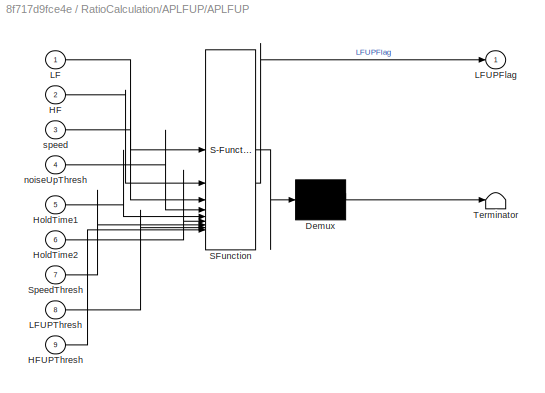
BLOCK [SubSystem] RatioCalculation/APLFUP/APLFUP
  ErrorFcn = Stateflow.Translate.translate
  PermitHierarchicalResolution = ExplicitOnly
  SFBlockType = MATLAB Function
  TreatAsAtomicUnit = on
BLOCK [Demux] RatioCalculation/APLFUP/APLFUP/ Demux 
  Outputs = 1
BLOCK [S-Function] RatioCalculation/APLFUP/APLFUP/ SFunction 
  EnableBusSupport = off
  FunctionName = sf_sfun
  PortCounts = [9 2]
  SFcnIsStateOwnerBlock = off
  SFunctionDeploymentMode = off
  Tag = Stateflow S-Function 8
BLOCK [Terminator] RatioCalculation/APLFUP/APLFUP/ Terminator 
BLOCK [Inport] RatioCalculation/APLFUP/APLFUP/HF
  Port = 2
BLOCK [Inport] RatioCalculation/APLFUP/APLFUP/HFUPThresh
  Port = 9
BLOCK [Inport] RatioCalculation/APLFUP/APLFUP/HoldTime1
  Port = 5
BLOCK [Inport] RatioCalculation/APLFUP/APLFUP/HoldTime2
  Port = 6
BLOCK [Inport] RatioCalculation/APLFUP/APLFUP/LF
BLOCK [Outport] RatioCalculation/APLFUP/APLFUP/LFUPFlag
  VectorParamsAs1DForOutWhenUnconnected = off
BLOCK [Inport] RatioCalculation/APLFUP/APLFUP/LFUPThresh
  Port = 8
BLOCK [Inport] RatioCalculation/APLFUP/APLFUP/SpeedThresh
  Port = 7
BLOCK [Inport] RatioCalculation/APLFUP/APLFUP/noiseUpThresh
  Port = 4
BLOCK [Inport] RatioCalculation/APLFUP/APLFUP/speed
  Port = 3
BLOCK [Reference] RatioCalculation/APLFUP/FeaturePath  REF=FeaturePath/FeaturePath
  SourceBlock = FeaturePath/FeaturePath
  SourceProductName = Bose Talaria
  SourceType = Talaria Feature Path
BLOCK [SubSystem] RatioCalculation/APLFUP/FlagHoldTime
BLOCK [Outport] RatioCalculation/APLFUP/FlagHoldTime/Out1
  IconDisplay = Signal name
  VectorParamsAs1DForOutWhenUnconnected = off
BLOCK [Reference] RatioCalculation/APLFUP/FlagHoldTime/TOP  REF=TOP/TOP
  SourceBlock = TOP/TOP
  SourceProductName = Bose Talaria
  SourceType = Talaria Target Overlay Parameter
BLOCK [Reference] RatioCalculation/APLFUP/FlagHoldTime/TranslateTrigger  REF=TuneVar/TranslateTrigger
  NameLocation = left
  SourceBlock = TuneVar/TranslateTrigger
  SourceProductName = Bose Talaria
  SourceType = Talaria Translate Trigger
BLOCK [Reference] RatioCalculation/APLFUP/FlagHoldTime/Tune Variable  REF=TuneVar/TuneVar
  SourceBlock = TuneVar/TuneVar
  SourceProductName = Bose Talaria
  SourceType = Talaria Tune Variable
BLOCK [SubSystem] RatioCalculation/APLFUP/FlagHoldTime/sec2samples
  ErrorFcn = Stateflow.Translate.translate
  PermitHierarchicalResolution = ExplicitOnly
  SFBlockType = MATLAB Function
  TreatAsAtomicUnit = on
BLOCK [Demux] RatioCalculation/APLFUP/FlagHoldTime/sec2samples/ Demux 
  Outputs = 1
BLOCK [S-Function] RatioCalculation/APLFUP/FlagHoldTime/sec2samples/ SFunction 
  EnableBusSupport = off
  FunctionName = sf_sfun
  Parameters = HFDecRate
  PortCounts = [2 2]
  SFcnIsStateOwnerBlock = off
  SFunctionDeploymentMode = off
  Tag = Stateflow S-Function 2
BLOCK [Terminator] RatioCalculation/APLFUP/FlagHoldTime/sec2samples/ Terminator 
BLOCK [Outport] RatioCalculation/APLFUP/FlagHoldTime/sec2samples/samples
  VectorParamsAs1DForOutWhenUnconnected = off
BLOCK [Inport] RatioCalculation/APLFUP/FlagHoldTime/sec2samples/time
BLOCK [TriggerPort] RatioCalculation/APLFUP/FlagHoldTime/sec2samples/trigger
  ShowOutputPort = on
  StatesWhenEnabling = held
  TriggerType = function-call
  VariantControl = Variant
BLOCK [Inport] RatioCalculation/APLFUP/HfNoise
BLOCK [Reference] RatioCalculation/APLFUP/HfNoiseThresh  REF=TuneVar/TuneTOP
  SourceBlock = TuneVar/TuneTOP
  SourceProductName = Bose Talaria
  SourceType = Talaria Trivial Tune TOP
BLOCK [Outport] RatioCalculation/APLFUP/LFUP
  VectorParamsAs1DForOutWhenUnconnected = off
BLOCK [Inport] RatioCalculation/APLFUP/LfNoise
  Port = 3
BLOCK [Reference] RatioCalculation/APLFUP/LfNoiseThresh  REF=TuneVar/TuneTOP
  SourceBlock = TuneVar/TuneTOP
  SourceProductName = Bose Talaria
  SourceType = Talaria Trivial Tune TOP
BLOCK [SubSystem] RatioCalculation/APLFUP/LfNoiseUpdatePeriod
BLOCK [Outport] RatioCalculation/APLFUP/LfNoiseUpdatePeriod/Out1
  IconDisplay = Signal name
  VectorParamsAs1DForOutWhenUnconnected = off
BLOCK [Reference] RatioCalculation/APLFUP/LfNoiseUpdatePeriod/TOP  REF=TOP/TOP
  SourceBlock = TOP/TOP
  SourceProductName = Bose Talaria
  SourceType = Talaria Target Overlay Parameter
BLOCK [Reference] RatioCalculation/APLFUP/LfNoiseUpdatePeriod/TranslateTrigger  REF=TuneVar/TranslateTrigger
  NameLocation = left
  SourceBlock = TuneVar/TranslateTrigger
  SourceProductName = Bose Talaria
  SourceType = Talaria Translate Trigger
BLOCK [Reference] RatioCalculation/APLFUP/LfNoiseUpdatePeriod/Tune Variable  REF=TuneVar/TuneVar
  SourceBlock = TuneVar/TuneVar
  SourceProductName = Bose Talaria
  SourceType = Talaria Tune Variable
BLOCK [SubSystem] RatioCalculation/APLFUP/LfNoiseUpdatePeriod/sec2samples
  ErrorFcn = Stateflow.Translate.translate
  PermitHierarchicalResolution = ExplicitOnly
  SFBlockType = MATLAB Function
  TreatAsAtomicUnit = on
BLOCK [Demux] RatioCalculation/APLFUP/LfNoiseUpdatePeriod/sec2samples/ Demux 
  Outputs = 1
BLOCK [S-Function] RatioCalculation/APLFUP/LfNoiseUpdatePeriod/sec2samples/ SFunction 
  EnableBusSupport = off
  FunctionName = sf_sfun
  Parameters = HFDecRate
  PortCounts = [2 2]
  SFcnIsStateOwnerBlock = off
  SFunctionDeploymentMode = off
  Tag = Stateflow S-Function 13
BLOCK [Terminator] RatioCalculation/APLFUP/LfNoiseUpdatePeriod/sec2samples/ Terminator 
BLOCK [Outport] RatioCalculation/APLFUP/LfNoiseUpdatePeriod/sec2samples/samples
  VectorParamsAs1DForOutWhenUnconnected = off
BLOCK [Inport] RatioCalculation/APLFUP/LfNoiseUpdatePeriod/sec2samples/time
BLOCK [TriggerPort] RatioCalculation/APLFUP/LfNoiseUpdatePeriod/sec2samples/trigger
  ShowOutputPort = on
  StatesWhenEnabling = held
  TriggerType = function-call
  VariantControl = Variant
BLOCK [Reference] RatioCalculation/APLFUP/LfNoiseUpdateThresh  REF=TuneVar/TuneTOP
  SourceBlock = TuneVar/TuneTOP
  SourceProductName = Bose Talaria
  SourceType = Talaria Trivial Tune TOP
BLOCK [Inport] RatioCalculation/APLFUP/Speed
  Port = 2
BLOCK [Reference] RatioCalculation/APLFUP/SpeedUpdateThresh  REF=TuneVar/TuneTOP
  SourceBlock = TuneVar/TuneTOP
  SourceProductName = Bose Talaria
  SourceType = Talaria Trivial Tune TOP
BLOCK [SubSystem] RatioCalculation/EnergyLpfCoef
BLOCK [Outport] RatioCalculation/EnergyLpfCoef/Out1
  IconDisplay = Signal name
  VectorParamsAs1DForOutWhenUnconnected = off
BLOCK [Reference] RatioCalculation/EnergyLpfCoef/TOP  REF=TOP/TOP
  SourceBlock = TOP/TOP
  SourceProductName = Bose Talaria
  SourceType = Talaria Target Overlay Parameter
BLOCK [SubSystem] RatioCalculation/EnergyLpfCoef/Tau2Coef
  ErrorFcn = Stateflow.Translate.translate
  PermitHierarchicalResolution = ExplicitOnly
  SFBlockType = MATLAB Function
  TreatAsAtomicUnit = on
BLOCK [Demux] RatioCalculation/EnergyLpfCoef/Tau2Coef/ Demux 
  Outputs = 1
BLOCK [S-Function] RatioCalculation/EnergyLpfCoef/Tau2Coef/ SFunction 
  EnableBusSupport = off
  FunctionName = sf_sfun
  Parameters = HFDecRate
  PortCounts = [2 2]
  SFcnIsStateOwnerBlock = off
  SFunctionDeploymentMode = off
  Tag = Stateflow S-Function 17
BLOCK [Terminator] RatioCalculation/EnergyLpfCoef/Tau2Coef/ Terminator 
BLOCK [Outport] RatioCalculation/EnergyLpfCoef/Tau2Coef/coef
  VectorParamsAs1DForOutWhenUnconnected = off
BLOCK [Inport] RatioCalculation/EnergyLpfCoef/Tau2Coef/tau
BLOCK [TriggerPort] RatioCalculation/EnergyLpfCoef/Tau2Coef/trigger
  ShowOutputPort = on
  StatesWhenEnabling = held
  TriggerType = function-call
  VariantControl = Variant
BLOCK [Reference] RatioCalculation/EnergyLpfCoef/TranslateTrigger  REF=TuneVar/TranslateTrigger
  NameLocation = left
  SourceBlock = TuneVar/TranslateTrigger
  SourceProductName = Bose Talaria
  SourceType = Talaria Translate Trigger
BLOCK [Reference] RatioCalculation/EnergyLpfCoef/Tune Variable  REF=TuneVar/TuneVar
  SourceBlock = TuneVar/TuneVar
  SourceProductName = Bose Talaria
  SourceType = Talaria Tune Variable
BLOCK [Reference] RatioCalculation/FeaturePath  REF=FeaturePath/FeaturePath
  SourceBlock = FeaturePath/FeaturePath
  SourceProductName = Bose Talaria
  SourceType = Talaria Feature Path
BLOCK [Reference] RatioCalculation/HandyDefaultConfigFile  REF=HandyTextFile/HandyTextFile
  SourceBlock = HandyTextFile/HandyTextFile
  SourceProductName = Bose Talaria
  SourceType = Talaria Handy Text File
BLOCK [Reference] RatioCalculation/HandyMaskFile  REF=HandyTextFile/HandyTextFile
  SourceBlock = HandyTextFile/HandyTextFile
  SourceProductName = Bose Talaria
  SourceType = Talaria Handy Text File
BLOCK [Inport] RatioCalculation/HfNoisePostSmooth
  Port = 2
  SampleTime = Config.DecSampleTimeSec
BLOCK [Inport] RatioCalculation/HfNoisePreSmooth
  SampleTime = Config.DecSampleTimeSec
BLOCK [Reference] RatioCalculation/HighBound  REF=TuneVar/TuneTOP
  SourceBlock = TuneVar/TuneTOP
  SourceProductName = Bose Talaria
  SourceType = Talaria Trivial Tune TOP
BLOCK [Inport] RatioCalculation/LfNoisePostSmooth
  Port = 4
  SampleTime = Config.DecSampleTimeSec
BLOCK [Inport] RatioCalculation/LfNoisePreSmooth
  Port = 3
  SampleTime = Config.DecSampleTimeSec
BLOCK [Reference] RatioCalculation/LowBound  REF=TuneVar/TuneTOP
  SourceBlock = TuneVar/TuneTOP
  SourceProductName = Bose Talaria
  SourceType = Talaria Trivial Tune TOP
BLOCK [Outport] RatioCalculation/NoiseRatio
  VectorParamsAs1DForOutWhenUnconnected = off
BLOCK [Reference] RatioCalculation/PostSlew  REF=StateVar/TargetStateVar
  SourceBlock = StateVar/TargetStateVar
  SourceProductName = Bose Talaria
  SourceType = Talaria Target State Variable
BLOCK [Reference] RatioCalculation/PreSlew  REF=StateVar/TargetStateVar
  SourceBlock = StateVar/TargetStateVar
  SourceProductName = Bose Talaria
  SourceType = Talaria Target State Variable
BLOCK [RateTransition] RatioCalculation/Rate Transition
BLOCK [RateTransition] RatioCalculation/Rate Transition1
BLOCK [Outport] RatioCalculation/RatioHigh
  Port = 3
  VectorParamsAs1DForOutWhenUnconnected = off
BLOCK [Outport] RatioCalculation/RatioLow
  Port = 2
  VectorParamsAs1DForOutWhenUnconnected = off
BLOCK [Constant] RatioCalculation/RatioOutputLowBound
  Value = single(Config.ImpRejOutputLowBound)
BLOCK [SubSystem] RatioCalculation/RatioSlew
BLOCK [Constant] RatioCalculation/RatioSlew/Constant1
  OutDataTypeStr = single
  Value = 0
BLOCK [Constant] RatioCalculation/RatioSlew/Constant3
  OutDataTypeStr = single
  Value = 0
BLOCK [Reference] RatioCalculation/RatioSlew/FeaturePath  REF=FeaturePath/FeaturePath
  SourceBlock = FeaturePath/FeaturePath
  SourceProductName = Bose Talaria
  SourceType = Talaria Feature Path
BLOCK [Inport] RatioCalculation/RatioSlew/PreSlew
BLOCK [Outport] RatioCalculation/RatioSlew/Ratio
  VectorParamsAs1DForOutWhenUnconnected = off
BLOCK [Inport] RatioCalculation/RatioSlew/RatioInit
  Port = 2
BLOCK [Reference] RatioCalculation/RatioSlew/Slew  REF=SpeedBoundsNoiseSlew/Slew
  SourceBlock = SpeedBoundsNoiseSlew/Slew
  SourceType = SubSystem
BLOCK [SubSystem] RatioCalculation/RatioSlew/attack
BLOCK [Outport] RatioCalculation/RatioSlew/attack/Out1
  IconDisplay = Signal name
  VectorParamsAs1DForOutWhenUnconnected = off
BLOCK [Reference] RatioCalculation/RatioSlew/attack/TOP  REF=TOP/TOP
  SourceBlock = TOP/TOP
  SourceProductName = Bose Talaria
  SourceType = Talaria Target Overlay Parameter
BLOCK [Reference] RatioCalculation/RatioSlew/attack/TranslateTrigger  REF=TuneVar/TranslateTrigger
  NameLocation = left
  SourceBlock = TuneVar/TranslateTrigger
  SourceProductName = Bose Talaria
  SourceType = Talaria Translate Trigger
BLOCK [Reference] RatioCalculation/RatioSlew/attack/Tune Variable  REF=TuneVar/TuneVar
  SourceBlock = TuneVar/TuneVar
  SourceProductName = Bose Talaria
  SourceType = Talaria Tune Variable
BLOCK [SubSystem] RatioCalculation/RatioSlew/attack/sec2sample
  ErrorFcn = Stateflow.Translate.translate
  PermitHierarchicalResolution = ExplicitOnly
  SFBlockType = MATLAB Function
  TreatAsAtomicUnit = on
BLOCK [Demux] RatioCalculation/RatioSlew/attack/sec2sample/ Demux 
  Outputs = 1
BLOCK [S-Function] RatioCalculation/RatioSlew/attack/sec2sample/ SFunction 
  EnableBusSupport = off
  FunctionName = sf_sfun
  Parameters = HFDecRate
  PortCounts = [2 2]
  SFcnIsStateOwnerBlock = off
  SFunctionDeploymentMode = off
  Tag = Stateflow S-Function 7
BLOCK [Terminator] RatioCalculation/RatioSlew/attack/sec2sample/ Terminator 
BLOCK [TriggerPort] RatioCalculation/RatioSlew/attack/sec2sample/trigger
  ShowOutputPort = on
  StatesWhenEnabling = held
  TriggerType = function-call
  VariantControl = (inherit)
BLOCK [Inport] RatioCalculation/RatioSlew/attack/sec2sample/u
BLOCK [Outport] RatioCalculation/RatioSlew/attack/sec2sample/y
  VectorParamsAs1DForOutWhenUnconnected = off
BLOCK [SubSystem] RatioCalculation/RatioSlew/decay
BLOCK [Outport] RatioCalculation/RatioSlew/decay/Out1
  IconDisplay = Signal name
  VectorParamsAs1DForOutWhenUnconnected = off
BLOCK [Reference] RatioCalculation/RatioSlew/decay/TOP  REF=TOP/TOP
  SourceBlock = TOP/TOP
  SourceProductName = Bose Talaria
  SourceType = Talaria Target Overlay Parameter
BLOCK [Reference] RatioCalculation/RatioSlew/decay/TranslateTrigger  REF=TuneVar/TranslateTrigger
  NameLocation = left
  SourceBlock = TuneVar/TranslateTrigger
  SourceProductName = Bose Talaria
  SourceType = Talaria Translate Trigger
BLOCK [Reference] RatioCalculation/RatioSlew/decay/Tune Variable  REF=TuneVar/TuneVar
  SourceBlock = TuneVar/TuneVar
  SourceProductName = Bose Talaria
  SourceType = Talaria Tune Variable
BLOCK [SubSystem] RatioCalculation/RatioSlew/decay/sec2sample
  ErrorFcn = Stateflow.Translate.translate
  PermitHierarchicalResolution = ExplicitOnly
  SFBlockType = MATLAB Function
  TreatAsAtomicUnit = on
BLOCK [Demux] RatioCalculation/RatioSlew/decay/sec2sample/ Demux 
  Outputs = 1
BLOCK [S-Function] RatioCalculation/RatioSlew/decay/sec2sample/ SFunction 
  EnableBusSupport = off
  FunctionName = sf_sfun
  Parameters = HFDecRate
  PortCounts = [2 2]
  SFcnIsStateOwnerBlock = off
  SFunctionDeploymentMode = off
  Tag = Stateflow S-Function 1
BLOCK [Terminator] RatioCalculation/RatioSlew/decay/sec2sample/ Terminator 
BLOCK [TriggerPort] RatioCalculation/RatioSlew/decay/sec2sample/trigger
  ShowOutputPort = on
  StatesWhenEnabling = held
  TriggerType = function-call
  VariantControl = (inherit)
BLOCK [Inport] RatioCalculation/RatioSlew/decay/sec2sample/u
BLOCK [Outport] RatioCalculation/RatioSlew/decay/sec2sample/y
  VectorParamsAs1DForOutWhenUnconnected = off
BLOCK [Reference] RatioCalculation/RatioSlew/threshold  REF=TuneVar/TuneTOP
  SourceBlock = TuneVar/TuneTOP
  SourceProductName = Bose Talaria
  SourceType = Talaria Trivial Tune TOP
BLOCK [SubSystem] RatioCalculation/RatioSmoother
BLOCK [Reference] RatioCalculation/RatioSmoother/FeaturePath  REF=FeaturePath/FeaturePath
  SourceBlock = FeaturePath/FeaturePath
  SourceProductName = Bose Talaria
  SourceType = Talaria Feature Path
BLOCK [From] RatioCalculation/RatioSmoother/From
  GotoTag = RatioHigh
BLOCK [Goto] RatioCalculation/RatioSmoother/Goto
  GotoTag = RatioHigh
BLOCK [SubSystem] RatioCalculation/RatioSmoother/InitUnDb
BLOCK [Inport] RatioCalculation/RatioSmoother/InitUnDb/ 
BLOCK [Outport] RatioCalculation/RatioSmoother/InitUnDb/  
  VectorParamsAs1DForOutWhenUnconnected = off
BLOCK [Gain] RatioCalculation/RatioSmoother/InitUnDb/Gain
  Gain = 0.05
  OutDataTypeStr = Inherit: Same as input
  ParamDataTypeStr = Inherit: Same as input
  SaturateOnIntegerOverflow = on
BLOCK [Math] RatioCalculation/RatioSmoother/InitUnDb/Math Function
  Operator = 10^u
  SignedPower = on
BLOCK [Inport] RatioCalculation/RatioSmoother/LFUP
  SampleTime = Config.DecSampleTimeSec
BLOCK [MinMax] RatioCalculation/RatioSmoother/MinMax
  Function = max
  Inputs = 2
BLOCK [MinMax] RatioCalculation/RatioSmoother/MinMax1
  Inputs = 2
  OutDataTypeStr = single
BLOCK [Inport] RatioCalculation/RatioSmoother/PreHfNoise
  Port = 2
  SampleTime = Config.DecSampleTimeSec
BLOCK [Inport] RatioCalculation/RatioSmoother/PreLfNoise
  Port = 3
  SampleTime = Config.DecSampleTimeSec
BLOCK [Outport] RatioCalculation/RatioSmoother/PreSlewRatio
  VectorParamsAs1DForOutWhenUnconnected = off
BLOCK [Inport] RatioCalculation/RatioSmoother/RatioCoef
  Port = 6
  SampleTime = Config.DecSampleTimeSec
BLOCK [Inport] RatioCalculation/RatioSmoother/RatioHigh
  Port = 5
  SampleTime = Config.DecSampleTimeSec
BLOCK [SubSystem] RatioCalculation/RatioSmoother/RatioImpulseRejectionGamma0
BLOCK [Outport] RatioCalculation/RatioSmoother/RatioImpulseRejectionGamma0/Out1
  IconDisplay = Signal name
  VectorParamsAs1DForOutWhenUnconnected = off
BLOCK [Reference] RatioCalculation/RatioSmoother/RatioImpulseRejectionGamma0/TOP  REF=TOP/TOP
  SourceBlock = TOP/TOP
  SourceProductName = Bose Talaria
  SourceType = Talaria Target Overlay Parameter
BLOCK [SubSystem] RatioCalculation/RatioSmoother/RatioImpulseRejectionGamma0/Tau2Gamma
  ErrorFcn = Stateflow.Translate.translate
  PermitHierarchicalResolution = ExplicitOnly
  SFBlockType = MATLAB Function
  TreatAsAtomicUnit = on
BLOCK [Demux] RatioCalculation/RatioSmoother/RatioImpulseRejectionGamma0/Tau2Gamma/ Demux 
  Outputs = 1
BLOCK [S-Function] RatioCalculation/RatioSmoother/RatioImpulseRejectionGamma0/Tau2Gamma/ SFunction 
  EnableBusSupport = off
  FunctionName = sf_sfun
  Parameters = HFDecRate
  PortCounts = [2 2]
  SFcnIsStateOwnerBlock = off
  SFunctionDeploymentMode = off
  Tag = Stateflow S-Function 14
BLOCK [Terminator] RatioCalculation/RatioSmoother/RatioImpulseRejectionGamma0/Tau2Gamma/ Terminator 
BLOCK [Outport] RatioCalculation/RatioSmoother/RatioImpulseRejectionGamma0/Tau2Gamma/gamma
  VectorParamsAs1DForOutWhenUnconnected = off
BLOCK [Inport] RatioCalculation/RatioSmoother/RatioImpulseRejectionGamma0/Tau2Gamma/tau
BLOCK [TriggerPort] RatioCalculation/RatioSmoother/RatioImpulseRejectionGamma0/Tau2Gamma/trigger
  ShowOutputPort = on
  StatesWhenEnabling = held
  TriggerType = function-call
  VariantControl = Variant
BLOCK [Reference] RatioCalculation/RatioSmoother/RatioImpulseRejectionGamma0/TranslateTrigger  REF=TuneVar/TranslateTrigger
  NameLocation = left
  SourceBlock = TuneVar/TranslateTrigger
  SourceProductName = Bose Talaria
  SourceType = Talaria Translate Trigger
BLOCK [Reference] RatioCalculation/RatioSmoother/RatioImpulseRejectionGamma0/Tune Variable  REF=TuneVar/TuneVar
  SourceBlock = TuneVar/TuneVar
  SourceProductName = Bose Talaria
  SourceType = Talaria Tune Variable
BLOCK [SubSystem] RatioCalculation/RatioSmoother/RatioImpulseRejectionImpulseVarianceLpfCoef
BLOCK [Outport] RatioCalculation/RatioSmoother/RatioImpulseRejectionImpulseVarianceLpfCoef/Out1
  IconDisplay = Signal name
  VectorParamsAs1DForOutWhenUnconnected = off
BLOCK [Reference] RatioCalculation/RatioSmoother/RatioImpulseRejectionImpulseVarianceLpfCoef/TOP  REF=TOP/TOP
  SourceBlock = TOP/TOP
  SourceProductName = Bose Talaria
  SourceType = Talaria Target Overlay Parameter
BLOCK [SubSystem] RatioCalculation/RatioSmoother/RatioImpulseRejectionImpulseVarianceLpfCoef/Tau2Coef
  ErrorFcn = Stateflow.Translate.translate
  PermitHierarchicalResolution = ExplicitOnly
  SFBlockType = MATLAB Function
  TreatAsAtomicUnit = on
BLOCK [Demux] RatioCalculation/RatioSmoother/RatioImpulseRejectionImpulseVarianceLpfCoef/Tau2Coef/ Demux 
  Outputs = 1
BLOCK [S-Function] RatioCalculation/RatioSmoother/RatioImpulseRejectionImpulseVarianceLpfCoef/Tau2Coef/ SFunction 
  EnableBusSupport = off
  FunctionName = sf_sfun
  Parameters = HFDecRate
  PortCounts = [2 2]
  SFcnIsStateOwnerBlock = off
  SFunctionDeploymentMode = off
  Tag = Stateflow S-Function 15
BLOCK [Terminator] RatioCalculation/RatioSmoother/RatioImpulseRejectionImpulseVarianceLpfCoef/Tau2Coef/ Terminator 
BLOCK [Outport] RatioCalculation/RatioSmoother/RatioImpulseRejectionImpulseVarianceLpfCoef/Tau2Coef/coef
  VectorParamsAs1DForOutWhenUnconnected = off
BLOCK [Inport] RatioCalculation/RatioSmoother/RatioImpulseRejectionImpulseVarianceLpfCoef/Tau2Coef/tau
BLOCK [TriggerPort] RatioCalculation/RatioSmoother/RatioImpulseRejectionImpulseVarianceLpfCoef/Tau2Coef/trigger
  ShowOutputPort = on
  StatesWhenEnabling = held
  TriggerType = function-call
  VariantControl = Variant
BLOCK [Reference] RatioCalculation/RatioSmoother/RatioImpulseRejectionImpulseVarianceLpfCoef/TranslateTrigger  REF=TuneVar/TranslateTrigger
  NameLocation = left
  SourceBlock = TuneVar/TranslateTrigger
  SourceProductName = Bose Talaria
  SourceType = Talaria Translate Trigger
BLOCK [Reference] RatioCalculation/RatioSmoother/RatioImpulseRejectionImpulseVarianceLpfCoef/Tune Variable  REF=TuneVar/TuneVar
  SourceBlock = TuneVar/TuneVar
  SourceProductName = Bose Talaria
  SourceType = Talaria Tune Variable
BLOCK [Reference] RatioCalculation/RatioSmoother/RatioImpulseRejectionImpulseVarianceScale  REF=TuneVar/TuneTOP
  SourceBlock = TuneVar/TuneTOP
  SourceProductName = Bose Talaria
  SourceType = Talaria Trivial Tune TOP
BLOCK [Reference] RatioCalculation/RatioSmoother/RatioImpulseRejectionNoiseVarianceScale  REF=TuneVar/TuneTOP
  SourceBlock = TuneVar/TuneTOP
  SourceProductName = Bose Talaria
  SourceType = Talaria Trivial Tune TOP
BLOCK [Inport] RatioCalculation/RatioSmoother/RatioLow
  Port = 4
  SampleTime = Config.DecSampleTimeSec
BLOCK [Inport] RatioCalculation/RatioSmoother/RatioMin
  Port = 7
  SampleTime = Config.DecSampleTimeSec
BLOCK [SubSystem] RatioCalculation/RatioSmoother/RatioSmoother
  ErrorFcn = Stateflow.Translate.translate
  NameLocation = top
  PermitHierarchicalResolution = ExplicitOnly
  SFBlockType = MATLAB Function
  TreatAsAtomicUnit = on
BLOCK [Demux] RatioCalculation/RatioSmoother/RatioSmoother/ Demux 
  Outputs = 1
BLOCK [S-Function] RatioCalculation/RatioSmoother/RatioSmoother/ SFunction 
  EnableBusSupport = off
  FunctionName = sf_sfun
  PortCounts = [9 2]
  SFcnIsStateOwnerBlock = off
  SFunctionDeploymentMode = off
  Tag = Stateflow S-Function 16
BLOCK [Terminator] RatioCalculation/RatioSmoother/RatioSmoother/ Terminator 
BLOCK [Inport] RatioCalculation/RatioSmoother/RatioSmoother/GammaCorr
  Port = 7
BLOCK [Inport] RatioCalculation/RatioSmoother/RatioSmoother/ImpRejFiltOutInit
  Port = 9
BLOCK [Inport] RatioCalculation/RatioSmoother/RatioSmoother/ImpulseScale
  Port = 6
BLOCK [Inport] RatioCalculation/RatioSmoother/RatioSmoother/NoiseScale
  Port = 5
BLOCK [Inport] RatioCalculation/RatioSmoother/RatioSmoother/PreRatioLinear
  Port = 2
BLOCK [Inport] RatioCalculation/RatioSmoother/RatioSmoother/PreRatioMin
  Port = 8
BLOCK [Inport] RatioCalculation/RatioSmoother/RatioSmoother/RatioCoef
  Port = 3
BLOCK [Inport] RatioCalculation/RatioSmoother/RatioSmoother/RatioFiltCoef
  Port = 4
BLOCK [Outport] RatioCalculation/RatioSmoother/RatioSmoother/RatioLinear
  VectorParamsAs1DForOutWhenUnconnected = off
BLOCK [Inport] RatioCalculation/RatioSmoother/RatioSmoother/UpdateFlag
BLOCK [SubSystem] RatioCalculation/RatioSmoother/RatioUnDb
BLOCK [Inport] RatioCalculation/RatioSmoother/RatioUnDb/ 
BLOCK [Outport] RatioCalculation/RatioSmoother/RatioUnDb/  
  VectorParamsAs1DForOutWhenUnconnected = off
BLOCK [Gain] RatioCalculation/RatioSmoother/RatioUnDb/Gain
  Gain = 0.05
  OutDataTypeStr = Inherit: Same as input
  ParamDataTypeStr = Inherit: Same as input
  SaturateOnIntegerOverflow = on
BLOCK [Math] RatioCalculation/RatioSmoother/RatioUnDb/Math Function
  Operator = 10^u
  SignedPower = on
BLOCK [Sum] RatioCalculation/RatioSmoother/Subtract
  IconShape = rectangular
  Inputs = -+
BLOCK [Reference] RatioCalculation/RatioSmoother/dB Conversion3  REF=dspmathops/dB Conversion
  SourceBlock = dspmathops/dB Conversion
  SourceType = dB Conversion
BLOCK [Inport] RatioCalculation/Speed
  Port = 5
  SampleTime = Config.DecSampleTimeSec
BLOCK [Reference] RatioCalculation/UpdateFlag  REF=StateVar/TargetStateVar
  SourceBlock = StateVar/TargetStateVar
  SourceProductName = Bose Talaria
  SourceType = Talaria Target State Variable
ANNOTATION HighFrequencyNoiseEstimatorCoh/HfNoiseMusicSeparation : Optimization Idea: 1. Use 1-D array to store HALF 3-D GXY matrix, saving 16 KB
ANNOTATION HighFrequencyNoiseEstimatorCoh/PostProcessing/HfImpulseRejection: Impulse and Speech Rejection
ANNOTATION HighFrequencyNoiseEstimatorCoh/PostProcessing/HfSlew: Slew for High-Frequency Noise Esimate
ANNOTATION HighFrequencyNoiseEstimatorCoh/PreProcessing: pre-process
ANNOTATION RatioCalculation/APLFUP: APLFUP
ANNOTATION RatioCalculation/RatioSlew: Slew for Noise Ratio
ANNOTATION RatioCalculation/RatioSmoother: Impulse Rejection for Noise Ratio
LINE RatioCalculation/APLFUP/APLFUP:1 -> RatioCalculation/APLFUP/LFUP:1
LINE RatioCalculation/APLFUP/FlagHoldTime/TOP:1 -> RatioCalculation/APLFUP/FlagHoldTime/Out1:1
LINE RatioCalculation/APLFUP/FlagHoldTime/TranslateTrigger:1 -> RatioCalculation/APLFUP/FlagHoldTime/sec2samples:trigger
LINE RatioCalculation/APLFUP/FlagHoldTime/Tune Variable:1 -> RatioCalculation/APLFUP/FlagHoldTime/sec2samples:1
LINE RatioCalculation/APLFUP/FlagHoldTime/sec2samples:1 -> RatioCalculation/APLFUP/FlagHoldTime/TOP:1
LINE RatioCalculation/APLFUP/FlagHoldTime:1 -> RatioCalculation/APLFUP/APLFUP:5
LINE RatioCalculation/APLFUP/HfNoise:1 -> RatioCalculation/APLFUP/APLFUP:2
LINE RatioCalculation/APLFUP/HfNoiseThresh:1 -> RatioCalculation/APLFUP/APLFUP:9
LINE RatioCalculation/APLFUP/LfNoise:1 -> RatioCalculation/APLFUP/APLFUP:1
LINE RatioCalculation/APLFUP/LfNoiseThresh:1 -> RatioCalculation/APLFUP/APLFUP:8
LINE RatioCalculation/APLFUP/LfNoiseUpdatePeriod/TOP:1 -> RatioCalculation/APLFUP/LfNoiseUpdatePeriod/Out1:1
LINE RatioCalculation/APLFUP/LfNoiseUpdatePeriod/TranslateTrigger:1 -> RatioCalculation/APLFUP/LfNoiseUpdatePeriod/sec2samples:trigger
LINE RatioCalculation/APLFUP/LfNoiseUpdatePeriod/Tune Variable:1 -> RatioCalculation/APLFUP/LfNoiseUpdatePeriod/sec2samples:1
LINE RatioCalculation/APLFUP/LfNoiseUpdatePeriod/sec2samples:1 -> RatioCalculation/APLFUP/LfNoiseUpdatePeriod/TOP:1
LINE RatioCalculation/APLFUP/LfNoiseUpdatePeriod:1 -> RatioCalculation/APLFUP/APLFUP:6
LINE RatioCalculation/APLFUP/LfNoiseUpdateThresh:1 -> RatioCalculation/APLFUP/APLFUP:4
LINE RatioCalculation/APLFUP/Speed:1 -> RatioCalculation/APLFUP/APLFUP:3
LINE RatioCalculation/APLFUP/SpeedUpdateThresh:1 -> RatioCalculation/APLFUP/APLFUP:7
NET RatioCalculation/APLFUP:1 -> RatioCalculation/RatioSmoother:1, RatioCalculation/UpdateFlag:1
LINE RatioCalculation/EnergyLpfCoef/TOP:1 -> RatioCalculation/EnergyLpfCoef/Out1:1
LINE RatioCalculation/EnergyLpfCoef/Tau2Coef:1 -> RatioCalculation/EnergyLpfCoef/TOP:1
LINE RatioCalculation/EnergyLpfCoef/TranslateTrigger:1 -> RatioCalculation/EnergyLpfCoef/Tau2Coef:trigger
LINE RatioCalculation/EnergyLpfCoef/Tune Variable:1 -> RatioCalculation/EnergyLpfCoef/Tau2Coef:1
LINE RatioCalculation/EnergyLpfCoef:1 -> RatioCalculation/RatioSmoother:6
LINE RatioCalculation/HfNoisePostSmooth:1 -> RatioCalculation/APLFUP:1
LINE RatioCalculation/HfNoisePreSmooth:1 -> RatioCalculation/RatioSmoother:2
NET RatioCalculation/HighBound:1 -> RatioCalculation/Rate Transition1:1, RatioCalculation/RatioHigh:1
LINE RatioCalculation/LfNoisePostSmooth:1 -> RatioCalculation/APLFUP:3
LINE RatioCalculation/LfNoisePreSmooth:1 -> RatioCalculation/RatioSmoother:3
NET RatioCalculation/LowBound:1 -> RatioCalculation/Rate Transition:1, RatioCalculation/RatioLow:1
NET RatioCalculation/Rate Transition1:1 -> RatioCalculation/RatioSlew:2, RatioCalculation/RatioSmoother:5
LINE RatioCalculation/Rate Transition:1 -> RatioCalculation/RatioSmoother:4
LINE RatioCalculation/RatioOutputLowBound:1 -> RatioCalculation/RatioSmoother:7
LINE RatioCalculation/RatioSlew/Constant1:1 -> RatioCalculation/RatioSlew/Slew:6
LINE RatioCalculation/RatioSlew/Constant3:1 -> RatioCalculation/RatioSlew/Slew:2
LINE RatioCalculation/RatioSlew/PreSlew:1 -> RatioCalculation/RatioSlew/Slew:1
LINE RatioCalculation/RatioSlew/RatioInit:1 -> RatioCalculation/RatioSlew/Slew:7
LINE RatioCalculation/RatioSlew/Slew:1 -> RatioCalculation/RatioSlew/Ratio:1
LINE RatioCalculation/RatioSlew/attack/TOP:1 -> RatioCalculation/RatioSlew/attack/Out1:1
LINE RatioCalculation/RatioSlew/attack/TranslateTrigger:1 -> RatioCalculation/RatioSlew/attack/sec2sample:trigger
LINE RatioCalculation/RatioSlew/attack/Tune Variable:1 -> RatioCalculation/RatioSlew/attack/sec2sample:1
LINE RatioCalculation/RatioSlew/attack/sec2sample:1 -> RatioCalculation/RatioSlew/attack/TOP:1
LINE RatioCalculation/RatioSlew/attack:1 -> RatioCalculation/RatioSlew/Slew:3
LINE RatioCalculation/RatioSlew/decay/TOP:1 -> RatioCalculation/RatioSlew/decay/Out1:1
LINE RatioCalculation/RatioSlew/decay/TranslateTrigger:1 -> RatioCalculation/RatioSlew/decay/sec2sample:trigger
LINE RatioCalculation/RatioSlew/decay/Tune Variable:1 -> RatioCalculation/RatioSlew/decay/sec2sample:1
LINE RatioCalculation/RatioSlew/decay/sec2sample:1 -> RatioCalculation/RatioSlew/decay/TOP:1
LINE RatioCalculation/RatioSlew/decay:1 -> RatioCalculation/RatioSlew/Slew:4
LINE RatioCalculation/RatioSlew/threshold:1 -> RatioCalculation/RatioSlew/Slew:5
NET RatioCalculation/RatioSlew:1 -> RatioCalculation/NoiseRatio:1, RatioCalculation/PostSlew:1
LINE RatioCalculation/RatioSmoother/From:1 -> RatioCalculation/RatioSmoother/InitUnDb:1
LINE RatioCalculation/RatioSmoother/InitUnDb/ :1 -> RatioCalculation/RatioSmoother/InitUnDb/Gain:1
LINE RatioCalculation/RatioSmoother/InitUnDb/Gain:1 -> RatioCalculation/RatioSmoother/InitUnDb/Math Function:1
LINE RatioCalculation/RatioSmoother/InitUnDb/Math Function:1 -> RatioCalculation/RatioSmoother/InitUnDb/  :1
LINE RatioCalculation/RatioSmoother/InitUnDb:1 -> RatioCalculation/RatioSmoother/RatioSmoother:9
LINE RatioCalculation/RatioSmoother/LFUP:1 -> RatioCalculation/RatioSmoother/RatioSmoother:1
LINE RatioCalculation/RatioSmoother/MinMax1:1 -> RatioCalculation/RatioSmoother/RatioUnDb:1
LINE RatioCalculation/RatioSmoother/MinMax:1 -> RatioCalculation/RatioSmoother/MinMax1:1
LINE RatioCalculation/RatioSmoother/PreHfNoise:1 -> RatioCalculation/RatioSmoother/Subtract:1
LINE RatioCalculation/RatioSmoother/PreLfNoise:1 -> RatioCalculation/RatioSmoother/Subtract:2
LINE RatioCalculation/RatioSmoother/RatioCoef:1 -> RatioCalculation/RatioSmoother/RatioSmoother:3
NET RatioCalculation/RatioSmoother/RatioHigh:1 -> RatioCalculation/RatioSmoother/Goto:1, RatioCalculation/RatioSmoother/MinMax1:2
LINE RatioCalculation/RatioSmoother/RatioImpulseRejectionGamma0/TOP:1 -> RatioCalculation/RatioSmoother/RatioImpulseRejectionGamma0/Out1:1
LINE RatioCalculation/RatioSmoother/RatioImpulseRejectionGamma0/Tau2Gamma:1 -> RatioCalculation/RatioSmoother/RatioImpulseRejectionGamma0/TOP:1
LINE RatioCalculation/RatioSmoother/RatioImpulseRejectionGamma0/TranslateTrigger:1 -> RatioCalculation/RatioSmoother/RatioImpulseRejectionGamma0/Tau2Gamma:trigger
LINE RatioCalculation/RatioSmoother/RatioImpulseRejectionGamma0/Tune Variable:1 -> RatioCalculation/RatioSmoother/RatioImpulseRejectionGamma0/Tau2Gamma:1
LINE RatioCalculation/RatioSmoother/RatioImpulseRejectionGamma0:1 -> RatioCalculation/RatioSmoother/RatioSmoother:7
LINE RatioCalculation/RatioSmoother/RatioImpulseRejectionImpulseVarianceLpfCoef/TOP:1 -> RatioCalculation/RatioSmoother/RatioImpulseRejectionImpulseVarianceLpfCoef/Out1:1
LINE RatioCalculation/RatioSmoother/RatioImpulseRejectionImpulseVarianceLpfCoef/Tau2Coef:1 -> RatioCalculation/RatioSmoother/RatioImpulseRejectionImpulseVarianceLpfCoef/TOP:1
LINE RatioCalculation/RatioSmoother/RatioImpulseRejectionImpulseVarianceLpfCoef/TranslateTrigger:1 -> RatioCalculation/RatioSmoother/RatioImpulseRejectionImpulseVarianceLpfCoef/Tau2Coef:trigger
LINE RatioCalculation/RatioSmoother/RatioImpulseRejectionImpulseVarianceLpfCoef/Tune Variable:1 -> RatioCalculation/RatioSmoother/RatioImpulseRejectionImpulseVarianceLpfCoef/Tau2Coef:1
LINE RatioCalculation/RatioSmoother/RatioImpulseRejectionImpulseVarianceLpfCoef:1 -> RatioCalculation/RatioSmoother/RatioSmoother:4
LINE RatioCalculation/RatioSmoother/RatioImpulseRejectionImpulseVarianceScale:1 -> RatioCalculation/RatioSmoother/RatioSmoother:6
LINE RatioCalculation/RatioSmoother/RatioImpulseRejectionNoiseVarianceScale:1 -> RatioCalculation/RatioSmoother/RatioSmoother:5
LINE RatioCalculation/RatioSmoother/RatioLow:1 -> RatioCalculation/RatioSmoother/MinMax:2
LINE RatioCalculation/RatioSmoother/RatioMin:1 -> RatioCalculation/RatioSmoother/RatioSmoother:8
LINE RatioCalculation/RatioSmoother/RatioSmoother:1 -> RatioCalculation/RatioSmoother/dB Conversion3:1
LINE RatioCalculation/RatioSmoother/RatioUnDb/ :1 -> RatioCalculation/RatioSmoother/RatioUnDb/Gain:1
LINE RatioCalculation/RatioSmoother/RatioUnDb/Gain:1 -> RatioCalculation/RatioSmoother/RatioUnDb/Math Function:1
LINE RatioCalculation/RatioSmoother/RatioUnDb/Math Function:1 -> RatioCalculation/RatioSmoother/RatioUnDb/  :1
LINE RatioCalculation/RatioSmoother/RatioUnDb:1 -> RatioCalculation/RatioSmoother/RatioSmoother:2
LINE RatioCalculation/RatioSmoother/Subtract:1 -> RatioCalculation/RatioSmoother/MinMax:1
LINE RatioCalculation/RatioSmoother/dB Conversion3:1 -> RatioCalculation/RatioSmoother/PreSlewRatio:1
NET RatioCalculation/RatioSmoother:1 -> RatioCalculation/PreSlew:1, RatioCalculation/RatioSlew:1
LINE RatioCalculation/Speed:1 -> RatioCalculation/APLFUP:2
note: NET lines group one-source signal fan-out (src -> all destinations, sorted); 1:1 wires keep LINE
CHART HighFrequencyNoiseEstimatorCoh/PostProcessing/HfSlew/attack/sec2sample states=1 transitions=1
  STATE_LABEL 'eML_blk_kernel()'
  STATE_LABEL 'SCRIPT:\nfunction y = fcn(u, HFDecRate2)\n% Convert rate from per sec to per sample\n\ny = (u.Value/HFDecRate2);'
CHART HighFrequencyNoiseEstimatorCoh/PostProcessing/HfSlew/decay/sec2sample states=1 transitions=1
  STATE_LABEL 'eML_blk_kernel()'
  STATE_LABEL 'SCRIPT:\nfunction y = fcn(u, HFDecRate2)\n% Convert rate from per sec to per sample\n\ny = -abs(u.Value/HFDecRate2);'
CHART HighFrequencyNoiseEstimatorCoh/HfNoiseMusicSeparation
/NoisePsdLevel/ExtractNoiseLevel states=1 transitions=1
  STATE_LABEL 'eML_blk_kernel()'
  STATE_LABEL 'SCRIPT:\nfunction NoiseLevel  = fcn(PSD)\n% This sums the Power Spectral Density values across all\n% frequency bands.\n%#codegen\n\nNoiseLevel = sum(PSD);'
CHART RatioCalculation/APLFUP/LfNoiseUpdatePeriod/sec2samples states=1 transitions=1
  STATE_LABEL 'eML_blk_kernel()'
  STATE_LABEL 'SCRIPT:\nfunction samples = fcn(time,HFDecRate)\n\n% A trivial pass-through translation looks like this:\nsamples = ceil(time.Value*HFDecRate);'
CHART RatioCalculation/RatioSmoother/RatioImpulseRejectionGamma0/Tau2Gamma states=1 transitions=1
  STATE_LABEL 'eML_blk_kernel()'
  STATE_LABEL 'SCRIPT:\nfunction gamma  = Tau2Gamma(tau,HFDecRate)\n% Approximate conversion from coefficient to time constant\n\nwc = 1/(HFDecRate*tau.Value);\ngamma = 1-(1-sin(wc))/cos(wc);'
CHART RatioCalculation/RatioSmoother/RatioImpulseRejectionImpulseVarianceLpfCoef/Tau2Coef states=1 transitions=1
  STATE_LABEL 'eML_blk_kernel()'
  STATE_LABEL 'SCRIPT:\nfunction coef  = Tau2Coef(tau,HFDecRate)\n% Convert from time constant to 1st order coefficient\n%#codegen\n\nwc = 1/(HFDecRate*tau.Value);\ncoef = (1-sin(wc))/cos(wc);\n'
CHART RatioCalculation/RatioSmoother/RatioSmoother states=1 transitions=1
  STATE_LABEL 'eML_blk_kernel()'
  STATE_LABEL 'SCRIPT:\nfunction RatioLinear = RatioSmoother(UpdateFlag, PreRatioLinear, ...\n\tRatioCoef, ...\n\tRatioFiltCoef, ...\n\tNoiseScale, ...\n\tImpulseScale, ...\n\tGammaCorr, ...\n\tPreRatioMin, ...\n\tImpRejFiltOutInit)\n\npersistent PreRatioLinLP ImpFiltState ImpRejFiltOut;\nif isempty(PreRatioLinLP); PreRatioLinLP = single(0); end\nif isempty(ImpFiltState); ImpFiltState = single([0 0]);\tend\nif isempty(ImpRejFiltOut)...<+1211ch>'
CHART RatioCalculation/EnergyLpfCoef/Tau2Coef states=1 transitions=1
  STATE_LABEL 'eML_blk_kernel()'
  STATE_LABEL 'SCRIPT:\nfunction coef  = Tau2Coef(tau,HFDecRate)\n% Convert from time constant to 1st order coefficient\n%#codegen\n\nwc = 1/(HFDecRate*tau.Value);\ncoef = (1-sin(wc))/cos(wc);\n'
CHART HighFrequencyNoiseEstimatorCoh/PostProcessing/HfImpulseRejection/MinSearch/SubWinLen/Sec2Samples states=1 transitions=1
  STATE_LABEL 'eML_blk_kernel()'
  STATE_LABEL 'SCRIPT:\nfunction samples  = Sec2Samples(time,HFDecRate2)\n% Convert period in sec to samples\n%#codegen\n\nsamples = ceil(HFDecRate2*time.Value);'
CHART HighFrequencyNoiseEstimatorCoh/HfNoiseMusicSeparation
/GaussianElimination/If Action
Subsystem/CoherenceModifier states=1 transitions=1
  STATE_LABEL 'eML_blk_kernel()'
  STATE_LABEL 'SCRIPT:\nfunction u = CoherenceModifier(u)\n%#eml\n% For coherence that is higher than threshold (meaning noise is low), we will enhance it to avoid\n% overestimation at low noise level\nN = length(u);\nthreshold = 0.88;\n%y = u;\nfor i = 1:N\n    if u(i) > threshold \n        u(i) = sqrt((u(i)-threshold)*(1-threshold)) + threshold;\n    end\nend'
CHART HighFrequencyNoiseEstimatorCoh/HfNoiseMusicSeparation
/RefPowerMin/undB states=1 transitions=1
  STATE_LABEL 'eML_blk_kernel()'
  STATE_LABEL 'SCRIPT:\nfunction TOP  = fcn(Tune)\n%#codegen\n\nTOP = undb20(Tune.Value);'
CHART HighFrequencyNoiseEstimatorCoh/HfNoiseMusicSeparation
/MicPsdLevel/ExtractMicLevel states=1 transitions=1
  STATE_LABEL 'eML_blk_kernel()'
  STATE_LABEL 'SCRIPT:\nfunction MicLevel = fcn(CSD)\n% This function generates a microphone level by \n% (1) Extracting Gyy from the cross-spectral density matrix\n%     It is the last entry (last column, last row) of the matrix.\n% (2) Sum Gyy over all frequency bands\n\nGyy = CSD(:,end,end);\nMicLevel = sum(Gyy);\n'
CHART HighFrequencyNoiseEstimatorCoh/HfNoiseMusicSeparation
/GaussianElimination/If Action
Subsystem/GaussianElimination states=1 transitions=1
  STATE_LABEL 'eML_blk_kernel()'
  STATE_LABEL 'SCRIPT:\nfunction [c,Gyy] = GaussianElimination(GXY)\n%#eml\n\n% global GXY;\n\nu = GXY;\nM = size(u,1);  % Number of frequency bins\nN = size(u,2);  % Size of coherence matrix\n\n% Vectors of Noise\nc = single(zeros(M,1));\nGyy = real(u(:,N,N));\n\nfor i = 1:M\n    % Loop over each frequency bin\n    S_data = squeeze(u(i,:,:));\n    S_mod = GaussianElim(S_data);\n    Snn_Gauss = S_mod(N,N);\n    %Gnn(i) = real(Snn_...<+760ch>'
CHART RatioCalculation/RatioSlew/decay/sec2sample states=1 transitions=1
  STATE_LABEL 'eML_blk_kernel()'
  STATE_LABEL 'SCRIPT:\nfunction y = RateConversion(u, HFDecRate)\n% Convert rate from per sec to per sample\n\ny = -abs(u.Value/HFDecRate);\n'
CHART RatioCalculation/APLFUP/FlagHoldTime/sec2samples states=1 transitions=1
  STATE_LABEL 'eML_blk_kernel()'
  STATE_LABEL 'SCRIPT:\nfunction samples  = fcn(time,HFDecRate)\n%#codegen\n\nsamples = ceil(time.Value*HFDecRate);\n'
CHART HighFrequencyNoiseEstimatorCoh/HfNoiseMusicSeparation
/FormCoherenceMatrixGXY states=1 transitions=1
  STATE_LABEL 'eML_blk_kernel()'
  STATE_LABEL 'SCRIPT:\nfunction [GnnUpdate,GXYOut] = FormGXY(StftIn,HFWELCHSIZE)\n\nK = HFWELCHSIZE;               % K: size of Welch window\nL = ceil(size(StftIn,1)/2);    % L: number frequency bins\nM = size(StftIn,2);            % M: mic + number of ref channels\n\npersistent GXY;\npersistent frame_counter;\n\n% Initialize states\nif isempty(GXY) \n    GXY=complex(single(zeros(L,M,M))); \nend\nif isempty(frame_counter) \n ...<+1113ch>'
CHART HighFrequencyNoiseEstimatorCoh/HfNoiseMusicSeparation
/GnnInitNoiseFloor states=1 transitions=1
  STATE_LABEL 'eML_blk_kernel()'
  STATE_LABEL 'SCRIPT:\nfunction fcn(RefPowerMin)\n% Initialize noise floor in Gnn based on ref_pow_min TOP \n\npersistent init_noise_floor;  % Flag\nglobal Gnn;\n\n% Initialize the flag\nif isempty(init_noise_floor) \n    init_noise_floor = false;\nend\n\n% Initialize Gnn\nif(~init_noise_floor)\n   Gnn(:) = RefPowerMin;\n   init_noise_floor = true;\nend'
CHART HighFrequencyNoiseEstimatorCoh/PostProcessing/HfImpulseRejection/MinSearch/ComputePmin states=1 transitions=1
  STATE_LABEL 'eML_blk_kernel()'
  STATE_LABEL 'SCRIPT:\nfunction [powMin, flatness] = MinSearch(P, ...\n\tsubWinLen, ...\n\tflatThresh, ...\n\tpowMSCoef, ...\n\tminGain, ...\n\tflatIdx1, ...\n\tflatIdx2, ...\n\tsubWin)\n\nnumFreqBins = size(P,1);\n\n% Because of restrictions on vsriable-size arrays, this number is currently\n% hard-coded. It is intended to be subWin.\nnumSubWin = 3;\n% The minimum value of 1e-8, currently hard-coded, should also be variable\n% or gl...<+1077ch>'
CHART HighFrequencyNoiseEstimatorCoh/ReferenceLatency/RefLatency/ms2samples states=1 transitions=1
  STATE_LABEL 'eML_blk_kernel()'
  STATE_LABEL "SCRIPT:\nfunction Samples = fcn(DelayTimeMS, MaxLatencySamples, HFDecRate)\n% Convert from time constant to samples\n\nSamples = floor(DelayTimeMS.Value*HFDecRate/1000);\n% Use floor to minimize the risk of going noncausal \n\nif Samples > MaxLatencySamples\n    TranslateError('Delay amount cannot be greater than specified max delay');\nend"
CHART RatioCalculation/RatioSlew/attack/sec2sample states=1 transitions=1
  STATE_LABEL 'eML_blk_kernel()'
  STATE_LABEL 'SCRIPT:\nfunction y = fcn(u, HFDecRate)\n% Convert rate from per sec to per sample\n\ny = abs(u.Value/HFDecRate);\n'
CHART RatioCalculation/APLFUP/APLFUP states=1 transitions=1
  STATE_LABEL 'eML_blk_kernel()'
  STATE_LABEL 'SCRIPT:\nfunction LFUPFlag = fcn(LF, HF, speed, ...\n noiseUpThresh, ...\n HoldTime1, ...\n HoldTime2, ...\n SpeedThresh, ...\n LFUPThresh, ...\n HFUPThresh)\n% This function is to check if the low freq noise goes up when the high\n% freq noise is going up. Only when both noise go up, the flag is set to\n% enable the ratio change and tuning adjustment\n%#eml\npersistent prev counter counter2 LFUP;\n\nif isempty...<+1370ch>'
CHART  states=0 transitions=0
CHART  states=0 transitions=0
CHART  states=0 transitions=0
CHART  states=0 transitions=0
CHART  states=0 transitions=0
CHART  states=0 transitions=0
CHART  states=0 transitions=0
CHART  states=0 transitions=0
CHART  states=0 transitions=0
CHART  states=0 transitions=0
CHART  states=0 transitions=0
CHART  states=0 transitions=0
CHART  states=0 transitions=0
CHART  states=0 transitions=0
CHART  states=0 transitions=0
CHART  states=0 transitions=0
CHART  states=0 transitions=0
CHART  states=0 transitions=0
CHART  states=0 transitions=0
CHART  states=0 transitions=0
CHART  states=0 transitions=0
